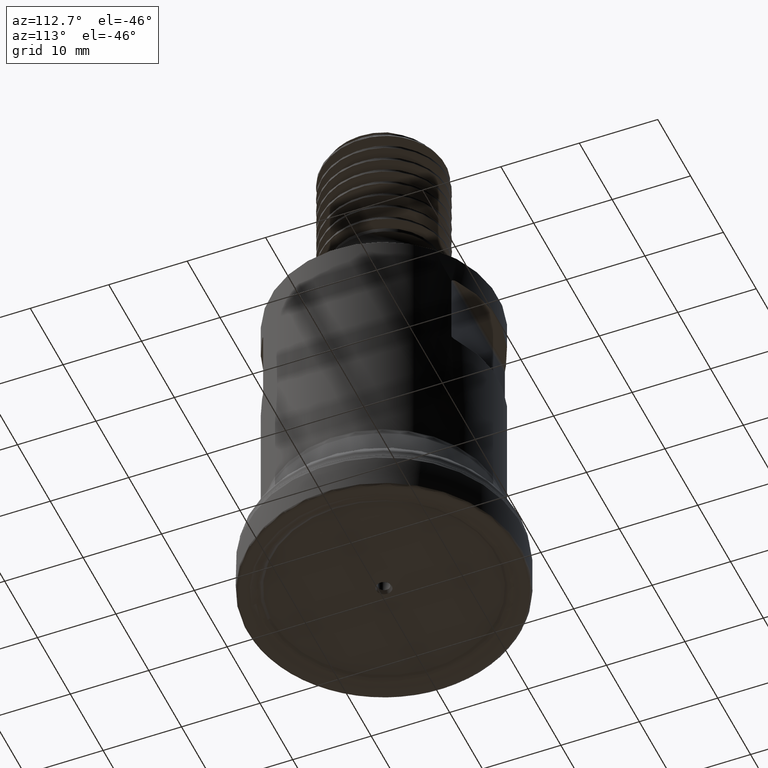
[diagram: clean part render]
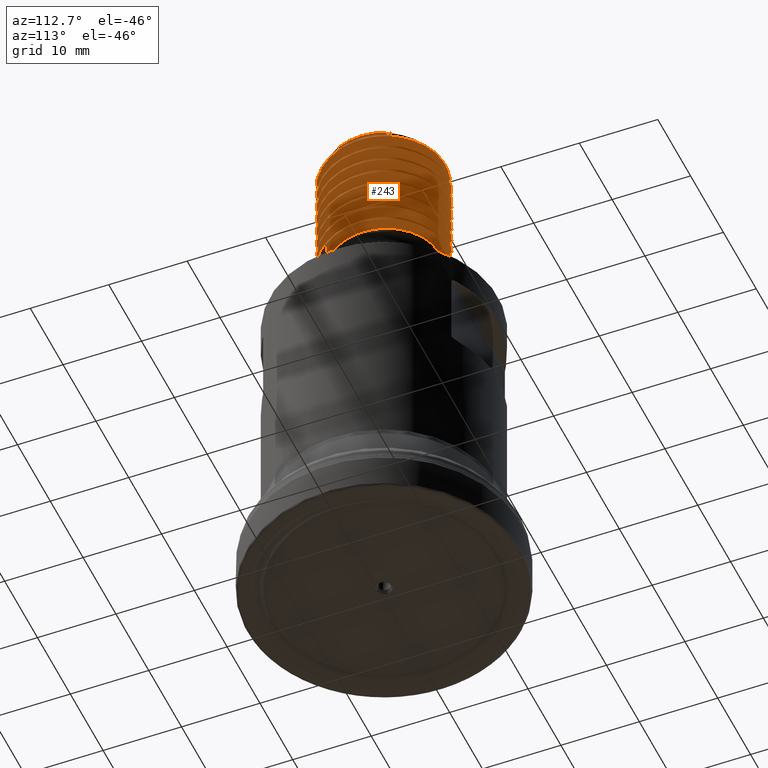
[diagram: same view with one face highlighted and labeled with its STEP entity id]
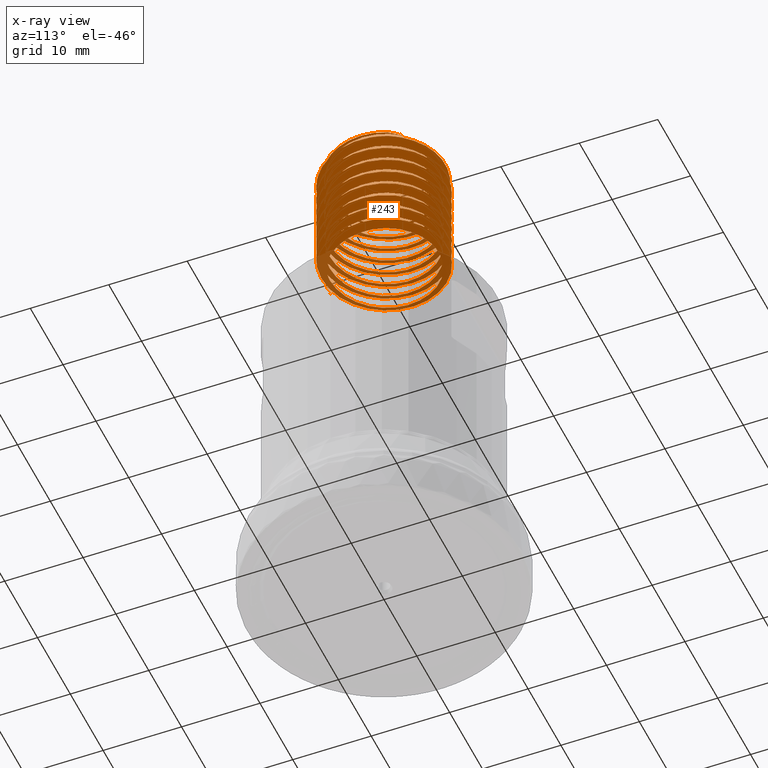
[diagram: x-ray of the same camera — body ghosted, the highlighted face saturated]
A machine part, auxiliary view. The second image highlights one B-rep face of the part: STEP entity #243.
The next image is the same camera in x-ray: the body ghosted, the highlighted face saturated — about 22% of this face is hidden behind the body in this view.
In plain terms, the highlighted face is a freeform B-spline surface patch.
Its self-contained STEP definition (entity closure, byte-faithful):
#152=B_SPLINE_SURFACE_WITH_KNOTS('',1,3,((#2382,#2383,#2384,#2385,#2386,
#2387,#2388,#2389,#2390,#2391,#2392,#2393,#2394,#2395,#2396,#2397,#2398,
#2399,#2400,#2401,#2402,#2403,#2404,#2405,#2406,#2407,#2408,#2409,#2410,
#2411,#2412,#2413,#2414,#2415,#2416,#2417,#2418,#2419,#2420,#2421,#2422,
#2423,#2424,#2425,#2426,#2427,#2428,#2429,#2430,#2431,#2432,#2433,#2434,
#2435,#2436,#2437,#2438,#2439,#2440,#2441,#2442,#2443,#2444,#2445,#2446,
#2447,#2448,#2449,#2450,#2451,#2452,#2453,#2454,#2455,#2456,#2457,#2458,
#2459,#2460,#2461,#2462,#2463,#2464,#2465,#2466,#2467,#2468,#2469,#2470,
#2471,#2472,#2473,#2474,#2475,#2476,#2477,#2478,#2479,#2480,#2481,#2482,
#2483,#2484,#2485,#2486,#2487,#2488,#2489,#2490,#2491,#2492,#2493,#2494,
#2495,#2496,#2497,#2498,#2499,#2500,#2501,#2502,#2503,#2504,#2505,#2506,
#2507,#2508,#2509,#2510,#2511,#2512,#2513,#2514,#2515,#2516,#2517,#2518,
#2519,#2520,#2521,#2522,#2523,#2524,#2525,#2526,#2527,#2528,#2529,#2530,
#2531,#2532,#2533,#2534,#2535,#2536,#2537,#2538,#2539,#2540,#2541,#2542,
#2543,#2544,#2545,#2546,#2547,#2548,#2549,#2550,#2551,#2552,#2553,#2554,
#2555,#2556,#2557,#2558,#2559,#2560,#2561,#2562,#2563,#2564,#2565,#2566,
#2567,#2568,#2569,#2570,#2571,#2572,#2573,#2574,#2575,#2576,#2577,#2578,
#2579,#2580,#2581,#2582,#2583,#2584,#2585,#2586,#2587,#2588,#2589,#2590,
#2591,#2592,#2593,#2594,#2595,#2596,#2597,#2598,#2599,#2600,#2601,#2602,
#2603,#2604,#2605,#2606,#2607,#2608,#2609,#2610,#2611,#2612,#2613,#2614,
#2615,#2616,#2617,#2618,#2619,#2620,#2621,#2622,#2623,#2624,#2625,#2626,
#2627,#2628,#2629,#2630,#2631,#2632,#2633,#2634,#2635,#2636,#2637,#2638,
#2639,#2640,#2641,#2642,#2643,#2644,#2645,#2646,#2647,#2648,#2649,#2650,
#2651,#2652,#2653,#2654,#2655,#2656,#2657,#2658),(#2659,#2660,#2661,#2662,
#2663,#2664,#2665,#2666,#2667,#2668,#2669,#2670,#2671,#2672,#2673,#2674,
#2675,#2676,#2677,#2678,#2679,#2680,#2681,#2682,#2683,#2684,#2685,#2686,
#2687,#2688,#2689,#2690,#2691,#2692,#2693,#2694,#2695,#2696,#2697,#2698,
#2699,#2700,#2701,#2702,#2703,#2704,#2705,#2706,#2707,#2708,#2709,#2710,
#2711,#2712,#2713,#2714,#2715,#2716,#2717,#2718,#2719,#2720,#2721,#2722,
#2723,#2724,#2725,#2726,#2727,#2728,#2729,#2730,#2731,#2732,#2733,#2734,
#2735,#2736,#2737,#2738,#2739,#2740,#2741,#2742,#2743,#2744,#2745,#2746,
#2747,#2748,#2749,#2750,#2751,#2752,#2753,#2754,#2755,#2756,#2757,#2758,
#2759,#2760,#2761,#2762,#2763,#2764,#2765,#2766,#2767,#2768,#2769,#2770,
#2771,#2772,#2773,#2774,#2775,#2776,#2777,#2778,#2779,#2780,#2781,#2782,
#2783,#2784,#2785,#2786,#2787,#2788,#2789,#2790,#2791,#2792,#2793,#2794,
#2795,#2796,#2797,#2798,#2799,#2800,#2801,#2802,#2803,#2804,#2805,#2806,
#2807,#2808,#2809,#2810,#2811,#2812,#2813,#2814,#2815,#2816,#2817,#2818,
#2819,#2820,#2821,#2822,#2823,#2824,#2825,#2826,#2827,#2828,#2829,#2830,
#2831,#2832,#2833,#2834,#2835,#2836,#2837,#2838,#2839,#2840,#2841,#2842,
#2843,#2844,#2845,#2846,#2847,#2848,#2849,#2850,#2851,#2852,#2853,#2854,
#2855,#2856,#2857,#2858,#2859,#2860,#2861,#2862,#2863,#2864,#2865,#2866,
#2867,#2868,#2869,#2870,#2871,#2872,#2873,#2874,#2875,#2876,#2877,#2878,
#2879,#2880,#2881,#2882,#2883,#2884,#2885,#2886,#2887,#2888,#2889,#2890,
#2891,#2892,#2893,#2894,#2895,#2896,#2897,#2898,#2899,#2900,#2901,#2902,
#2903,#2904,#2905,#2906,#2907,#2908,#2909,#2910,#2911,#2912,#2913,#2914,
#2915,#2916,#2917,#2918,#2919,#2920,#2921,#2922,#2923,#2924,#2925,#2926,
#2927,#2928,#2929,#2930,#2931,#2932,#2933,#2934,#2935)),.UNSPECIFIED.,.F.,
 .F.,.F.,(2,2),(4,1,1,1,1,1,1,1,1,1,1,1,1,1,1,1,1,1,1,1,1,1,1,1,1,1,1,1,
1,1,1,1,1,1,1,1,1,1,1,1,1,1,1,1,1,1,1,1,1,1,1,1,1,1,1,1,1,1,1,1,1,1,1,1,
1,1,1,1,1,1,1,1,1,1,1,1,1,1,1,1,1,1,1,1,1,1,1,1,1,1,1,1,1,1,1,1,1,1,1,1,
1,1,1,1,1,1,1,1,1,1,1,1,1,1,1,1,1,1,1,1,1,1,1,1,1,1,1,1,1,1,1,1,1,1,1,1,
1,1,1,1,1,1,1,1,1,1,1,1,1,1,1,1,1,1,1,1,1,1,1,1,1,1,1,1,1,1,1,1,1,1,1,1,
1,1,1,1,1,1,1,1,1,1,1,1,1,1,1,1,1,1,1,1,1,1,1,1,1,1,1,1,1,1,1,1,1,1,1,1,
1,1,1,1,1,1,1,1,1,1,1,1,1,1,1,1,1,1,1,1,1,1,1,1,1,1,1,1,1,1,1,1,1,1,1,1,
1,1,1,1,1,1,1,1,1,1,1,1,1,1,1,1,1,1,1,1,1,1,1,1,1,1,1,1,1,1,4),(0.,1.),
(0.,0.00366185293501716,0.00732370587003432,0.0109855588050515,0.0146474117400686,
0.0183092646750858,0.021971117610103,0.0256329705451201,0.0292948234801373,
0.0329566764151545,0.0366185293501716,0.0402803822851888,0.0439422352202059,
0.0476040881552231,0.0512659410902403,0.0549277940252574,0.0585896469602746,
0.0622514998952917,0.0659133528303089,0.0695752057653261,0.0732370587003432,
0.0768989116353604,0.0805607645703775,0.0842226175053947,0.0878844704404119,
0.091546323375429,0.0952081763104462,0.0988700292454634,0.102531882180481,
0.106193735115498,0.109855588050515,0.113517440985532,0.117179293920549,
0.120841146855566,0.124502999790583,0.128164852725601,0.131826705660618,
0.135488558595635,0.139150411530652,0.142812264465669,0.146474117400686,
0.150135970335704,0.153797823270721,0.157459676205738,0.161121529140755,
0.164783382075772,0.168445235010789,0.172107087945807,0.175768940880824,
0.179430793815841,0.183092646750858,0.186754499685875,0.190416352620892,
0.19407820555591,0.197740058490927,0.201401911425944,0.205063764360961,
0.208725617295978,0.212387470230995,0.216049323166013,0.21971117610103,
0.223373029036047,0.227034881971064,0.230696734906081,0.234358587841098,
0.238020440776115,0.241682293711133,0.24534414664615,0.249005999581167,
0.252667852516184,0.256329705451201,0.259991558386218,0.263653411321236,
0.267315264256253,0.27097711719127,0.274638970126287,0.278300823061304,
0.281962675996321,0.285624528931339,0.289286381866356,0.292948234801373,
0.29661008773639,0.300271940671407,0.303933793606424,0.307595646541442,
0.311257499476459,0.314919352411476,0.318581205346493,0.32224305828151,
0.325904911216527,0.329566764151545,0.333228617086562,0.336890470021579,
0.340552322956596,0.344214175891613,0.34787602882663,0.351537881761648,
0.355199734696665,0.358861587631682,0.362523440566699,0.366185293501716,
0.369847146436733,0.37350899937175,0.377170852306768,0.380832705241785,
0.384494558176802,0.388156411111819,0.391818264046836,0.395480116981853,
0.399141969916871,0.402803822851888,0.406465675786905,0.410127528721922,
0.413789381656939,0.417451234591956,0.421113087526974,0.424774940461991,
0.428436793397008,0.432098646332025,0.435760499267042,0.439422352202059,
0.443084205137077,0.446746058072094,0.450407911007111,0.454069763942128,
0.457731616877145,0.461393469812162,0.465055322747179,0.468717175682197,
0.472379028617214,0.476040881552231,0.479702734487248,0.483364587422265,
0.487026440357282,0.4906882932923,0.494350146227317,0.498011999162334,0.501673852097351,
0.505335705032368,0.508997557967385,0.512659410902403,0.51632126383742,
0.519983116772437,0.523644969707454,0.527306822642471,0.530968675577488,
0.534630528512506,0.538292381447523,0.54195423438254,0.545616087317557,
0.549277940252574,0.552939793187591,0.556601646122609,0.560263499057626,
0.563925351992643,0.56758720492766,0.571249057862677,0.574910910797694,
0.578572763732711,0.582234616667729,0.585896469602746,0.589558322537763,
0.59322017547278,0.596882028407797,0.600543881342814,0.604205734277832,
0.607867587212849,0.611529440147866,0.615191293082883,0.6188531460179,0.622514998952917,
0.626176851887935,0.629838704822952,0.633500557757969,0.637162410692986,
0.640824263628003,0.64448611656302,0.648147969498038,0.651809822433055,
0.655471675368072,0.659133528303089,0.662795381238106,0.666457234173123,
0.670119087108141,0.673780940043158,0.677442792978175,0.681104645913192,
0.684766498848209,0.688428351783226,0.692090204718243,0.695752057653261,
0.699413910588278,0.703075763523295,0.706737616458312,0.710399469393329,
0.714061322328347,0.717723175263364,0.721385028198381,0.725046881133398,
0.728708734068415,0.732370587003432,0.736032439938449,0.739694292873467,
0.743356145808484,0.747017998743501,0.750679851678518,0.754341704613535,
0.758003557548552,0.76166541048357,0.765327263418587,0.768989116353604,
0.772650969288621,0.776312822223638,0.779974675158655,0.783636528093673,
0.78729838102869,0.790960233963707,0.794622086898724,0.798283939833741,
0.801945792768758,0.805607645703776,0.809269498638793,0.81293135157381,
0.816593204508827,0.820255057443844,0.823916910378861,0.827578763313878,
0.831240616248896,0.834902469183913,0.83856432211893,0.842226175053947,
0.845888027988964,0.849549880923981,0.853211733858999,0.856873586794016,
0.860535439729033,0.86419729266405,0.867859145599067,0.871520998534084,
0.875182851469102,0.878844704404119,0.882506557339136,0.886168410274153,
0.88983026320917,0.893492116144187,0.897153969079205,0.900815822014222,
0.904477674949239,0.908139527884256,0.911801380819273,0.91546323375429,
0.919125086689307,0.922786939624325,0.926448792559342,0.930110645494359,
0.933772498429376,0.937434351364393,0.94109620429941,0.944758057234428,
0.948419910169445,0.952081763104462,0.955743616039479,0.959405468974496,
0.963067321909514,0.966729174844531,0.970391027779548,0.974052880714565,
0.977714733649582,0.981376586584599,0.985038439519616,0.988700292454634,
0.992362145389651,0.996023998324668,0.999685851259685,1.),.UNSPECIFIED.);
#171=FACE_OUTER_BOUND('',#477,.T.);
#243=ADVANCED_FACE('',(#171),#152,.F.);
#477=EDGE_LOOP('',(#645,#646,#647,#648,#649,#650));
#645=ORIENTED_EDGE('',*,*,#824,.T.);
#646=ORIENTED_EDGE('',*,*,#810,.F.);
#647=ORIENTED_EDGE('',*,*,#812,.F.);
#648=ORIENTED_EDGE('',*,*,#816,.F.);
#649=ORIENTED_EDGE('',*,*,#841,.F.);
#650=ORIENTED_EDGE('',*,*,#806,.F.);
#728=VERTEX_POINT('',#1717);
#730=VERTEX_POINT('',#1721);
#731=VERTEX_POINT('',#1728);
#734=VERTEX_POINT('',#1862);
#736=VERTEX_POINT('',#1996);
#738=VERTEX_POINT('',#2018);
#806=EDGE_CURVE('',#730,#728,#947,.T.);
#810=EDGE_CURVE('',#734,#731,#949,.T.);
#812=EDGE_CURVE('',#736,#734,#950,.T.);
#816=EDGE_CURVE('',#738,#736,#953,.T.);
#824=EDGE_CURVE('',#730,#731,#954,.T.);
#841=EDGE_CURVE('',#728,#738,#957,.T.);
#947=B_SPLINE_CURVE_WITH_KNOTS('',3,(#1722,#1723,#1724,#1725),
 .UNSPECIFIED.,.F.,.F.,(4,4),(0.,1.),.UNSPECIFIED.);
#949=B_SPLINE_CURVE_WITH_KNOTS('',3,(#1863,#1864,#1865,#1866,#1867,#1868,
#1869,#1870,#1871,#1872,#1873,#1874,#1875,#1876,#1877,#1878,#1879,#1880,
#1881,#1882,#1883,#1884,#1885,#1886,#1887,#1888,#1889,#1890,#1891,#1892,
#1893,#1894,#1895,#1896,#1897,#1898,#1899,#1900,#1901,#1902,#1903,#1904,
#1905,#1906,#1907,#1908,#1909,#1910,#1911,#1912,#1913,#1914,#1915,#1916,
#1917,#1918,#1919,#1920,#1921,#1922,#1923,#1924,#1925,#1926,#1927,#1928,
#1929,#1930,#1931,#1932,#1933,#1934,#1935,#1936,#1937,#1938,#1939,#1940,
#1941,#1942,#1943,#1944,#1945,#1946,#1947,#1948,#1949,#1950,#1951,#1952,
#1953,#1954,#1955,#1956,#1957,#1958,#1959,#1960,#1961,#1962,#1963,#1964,
#1965,#1966,#1967,#1968,#1969,#1970,#1971,#1972,#1973,#1974,#1975,#1976,
#1977,#1978,#1979,#1980,#1981,#1982,#1983,#1984,#1985,#1986,#1987,#1988,
#1989,#1990,#1991,#1992),.UNSPECIFIED.,.F.,.F.,(4,2,2,2,2,2,2,2,2,2,2,2,
2,2,2,2,2,2,2,2,2,2,2,2,2,2,2,2,2,2,2,2,2,2,2,2,2,2,2,2,2,2,2,2,2,2,2,2,
2,2,2,2,2,2,2,2,2,2,2,2,2,2,2,2,4),(0.,0.015625,0.03125,0.046875,0.0625,
0.078125,0.09375,0.109375,0.125,0.140625,0.15625,0.171875,0.1875,0.203125,
0.21875,0.234375,0.25,0.265625,0.28125,0.296875,0.3125,0.328125,0.34375,
0.359375,0.375,0.390625,0.40625,0.421875,0.4375,0.453125,0.46875,0.484375,
0.5,0.515625,0.53125,0.546875,0.5625,0.578125,0.59375,0.609375,0.625,0.640625,
0.65625,0.671875,0.6875,0.703125,0.71875,0.734375,0.75,0.765625,0.78125,
0.796875,0.8125,0.828125,0.84375,0.859375,0.875,0.890625,0.90625,0.921875,
0.9375,0.953125,0.96875,0.984375,1.),.UNSPECIFIED.);
#950=B_SPLINE_CURVE_WITH_KNOTS('',3,(#1997,#1998,#1999,#2000),
 .UNSPECIFIED.,.F.,.F.,(4,4),(0.,1.),.UNSPECIFIED.);
#953=B_SPLINE_CURVE_WITH_KNOTS('',3,(#2019,#2020,#2021,#2022,#2023,#2024,
#2025,#2026,#2027,#2028,#2029,#2030,#2031,#2032),.UNSPECIFIED.,.F.,.F.,
(4,2,2,2,2,2,4),(0.,0.499999999999999,0.749999999999999,0.874999999999999,
0.937499999999999,0.96875,1.),.UNSPECIFIED.);
#954=B_SPLINE_CURVE_WITH_KNOTS('',3,(#2055,#2056,#2057,#2058,#2059,#2060,
#2061,#2062,#2063,#2064,#2065,#2066,#2067,#2068,#2069,#2070,#2071,#2072),
 .UNSPECIFIED.,.F.,.F.,(4,2,2,2,2,2,2,2,4),(0.,0.125,0.25,0.375,0.5,0.625,
0.75,0.875,1.),.UNSPECIFIED.);
#957=B_SPLINE_CURVE_WITH_KNOTS('',3,(#2121,#2122,#2123,#2124,#2125,#2126,
#2127,#2128,#2129,#2130,#2131,#2132,#2133,#2134,#2135,#2136,#2137,#2138,
#2139,#2140,#2141,#2142,#2143,#2144,#2145,#2146,#2147,#2148,#2149,#2150,
#2151,#2152,#2153,#2154,#2155,#2156,#2157,#2158,#2159,#2160,#2161,#2162,
#2163,#2164,#2165,#2166,#2167,#2168,#2169,#2170,#2171,#2172,#2173,#2174,
#2175,#2176,#2177,#2178,#2179,#2180,#2181,#2182,#2183,#2184,#2185,#2186,
#2187,#2188,#2189,#2190,#2191,#2192,#2193,#2194,#2195,#2196,#2197,#2198,
#2199,#2200,#2201,#2202,#2203,#2204,#2205,#2206,#2207,#2208,#2209,#2210,
#2211,#2212,#2213,#2214,#2215,#2216,#2217,#2218,#2219,#2220,#2221,#2222,
#2223,#2224,#2225,#2226,#2227,#2228,#2229,#2230,#2231,#2232,#2233,#2234,
#2235,#2236,#2237,#2238,#2239,#2240,#2241,#2242,#2243,#2244,#2245,#2246,
#2247,#2248,#2249,#2250),.UNSPECIFIED.,.F.,.F.,(4,2,2,2,2,2,2,2,2,2,2,2,
2,2,2,2,2,2,2,2,2,2,2,2,2,2,2,2,2,2,2,2,2,2,2,2,2,2,2,2,2,2,2,2,2,2,2,2,
2,2,2,2,2,2,2,2,2,2,2,2,2,2,2,2,4),(0.,0.015625,0.03125,0.046875,0.0625,
0.078125,0.09375,0.109375,0.125,0.140625,0.15625,0.171875,0.1875,0.203125,
0.21875,0.234375,0.25,0.265625,0.28125,0.296875,0.3125,0.328125,0.34375,
0.359375,0.375,0.390625,0.40625,0.421875,0.4375,0.453125,0.46875,0.484375,
0.5,0.515625,0.53125,0.546875,0.5625,0.578125,0.59375,0.609375,0.625,0.640625,
0.65625,0.671875,0.6875,0.703125,0.71875,0.734375,0.75,0.765625,0.78125,
0.796875,0.8125,0.828125,0.84375,0.859375,0.875,0.890625,0.90625,0.921875,
0.9375,0.953125,0.96875,0.984375,1.),.UNSPECIFIED.);
#1717=CARTESIAN_POINT('',(5.35401283944786,4.50938427227366,70.45));
#1721=CARTESIAN_POINT('',(6.40140349429203,3.14890883366229,70.45));
#1722=CARTESIAN_POINT('',(6.401403494292,3.14890883366227,70.45));
#1723=CARTESIAN_POINT('',(6.10913267027931,3.64191383485213,70.45));
#1724=CARTESIAN_POINT('',(5.75765303477686,4.09938697941004,70.45));
#1725=CARTESIAN_POINT('',(5.35401283944786,4.50938427227366,70.45));
#1728=CARTESIAN_POINT('',(7.17785428981805,3.53247898707726,68.95));
#1862=CARTESIAN_POINT('',(6.29566578838417,-4.9360502713164,54.5928856678375));
#1863=CARTESIAN_POINT('',(6.29566578835474,-4.9360502713546,54.5928856678368));
#1864=CARTESIAN_POINT('',(7.46632144327613,-3.44294214816487,54.6688646402676));
#1865=CARTESIAN_POINT('',(8.0691561131384,-1.56702526442771,54.7415222169882));
#1866=CARTESIAN_POINT('',(7.91803293557399,2.20717081095224,54.8926747101589));
#1867=CARTESIAN_POINT('',(7.1570478218763,4.0394834359773,54.966996689977));
#1868=CARTESIAN_POINT('',(4.60599994390346,6.80628565892739,55.1159034854777));
#1869=CARTESIAN_POINT('',(2.83001526972825,7.71440343130595,55.1917775641073));
#1870=CARTESIAN_POINT('',(-0.895316911023375,8.16819529373993,55.3401282403617));
#1871=CARTESIAN_POINT('',(-2.84425079389076,7.70828488423885,55.415808622744));
#1872=CARTESIAN_POINT('',(-5.97022620939883,5.64480446461523,55.5648770740425));
#1873=CARTESIAN_POINT('',(-7.16047180377567,4.02834772479572,55.639601814181));
#1874=CARTESIAN_POINT('',(-8.20429647488584,0.435271405801599,55.7894635231574));
#1875=CARTESIAN_POINT('',(-8.06447968912855,-1.56931686272171,55.863885931323));
#1876=CARTESIAN_POINT('',(-6.53268650432337,-4.98222792616121,56.0134031536612));
#1877=CARTESIAN_POINT('',(-5.12869268615938,-6.41871128914183,56.0889571122142));
#1878=CARTESIAN_POINT('',(-1.74871441888735,-8.02778557035483,56.2369717224872));
#1879=CARTESIAN_POINT('',(0.24775350625364,-8.21295637440815,56.313255396979));
#1880=CARTESIAN_POINT('',(3.87058118565702,-7.24794008619214,56.4616078174419));
#1881=CARTESIAN_POINT('',(5.50657654848983,-6.09987246680979,56.536904490672));
#1882=CARTESIAN_POINT('',(7.64642726775096,-3.01047827341731,56.6866914820682));
#1883=CARTESIAN_POINT('',(8.14716971279593,-1.08518172876071,56.7604494077319));
#1884=CARTESIAN_POINT('',(7.77446992989097,2.66676039845296,56.9115684579541));
#1885=CARTESIAN_POINT('',(6.91438393298589,4.446926987315,56.9846488234967));
#1886=CARTESIAN_POINT('',(4.18804128333751,7.07419076731074,57.135788358338));
#1887=CARTESIAN_POINT('',(2.38374802764265,7.86759254709822,57.2099236584623));
#1888=CARTESIAN_POINT('',(-1.39384855944396,8.10175618861622,57.359465574727));
#1889=CARTESIAN_POINT('',(-3.28828678615368,7.53253876540551,57.4346396474194));
#1890=CARTESIAN_POINT('',(-6.30494875336158,5.27253178822216,57.5838426327781));
#1891=CARTESIAN_POINT('',(-7.38625944914696,3.60171672029616,57.658700376087));
#1892=CARTESIAN_POINT('',(-8.21737755043163,-0.0624353828804659,57.8085357776574));
#1893=CARTESIAN_POINT('',(-7.95809579107318,-2.04486943798401,57.8826803991221));
#1894=CARTESIAN_POINT('',(-6.22166415091107,-5.36690551729445,58.0329050953829));
#1895=CARTESIAN_POINT('',(-4.73575760791975,-6.71381011277636,58.1073568073389));
#1896=CARTESIAN_POINT('',(-1.26600405824053,-8.11787411062198,58.2565261794618));
#1897=CARTESIAN_POINT('',(0.741774412877989,-8.18219849970145,58.3324337277766));
#1898=CARTESIAN_POINT('',(4.29267149577339,-7.00511049145497,58.4802203227995));
#1899=CARTESIAN_POINT('',(5.86473718664724,-5.75372032232737,58.5566185834786));
#1900=CARTESIAN_POINT('',(7.80813345594909,-2.55606959022935,58.7049186955522));
#1901=CARTESIAN_POINT('',(8.19536685783089,-0.586707490760355,58.780261343694));
#1902=CARTESIAN_POINT('',(7.60402847717464,3.11239691113855,58.9298607408587));
#1903=CARTESIAN_POINT('',(6.62633332688682,4.85941877420942,59.0039684372788));
#1904=CARTESIAN_POINT('',(3.77395678065121,7.29928040288402,59.1544389481011));
#1905=CARTESIAN_POINT('',(1.90511697751433,7.99456970968973,59.2285457255834));
#1906=CARTESIAN_POINT('',(-1.85923497691531,8.00536450398832,59.3782646075159));
#1907=CARTESIAN_POINT('',(-3.72316635822901,7.32853933381187,59.4532843677339));
#1908=CARTESIAN_POINT('',(-6.60839973932259,4.88861016891267,59.6025047600078));
#1909=CARTESIAN_POINT('',(-7.58344041255827,3.17622074011883,59.6772411959989));
#1910=CARTESIAN_POINT('',(-8.20222459526897,-0.566090425238967,59.8276507391343));
#1911=CARTESIAN_POINT('',(-7.82966218046105,-2.50217018364485,59.9013921871203));
#1912=CARTESIAN_POINT('',(-5.88482557458435,-5.73875364907583,60.0522572250532));
#1913=CARTESIAN_POINT('',(-4.33645712486316,-6.9809667057962,60.125633512439));
#1914=CARTESIAN_POINT('',(-0.770975621296705,-8.18195289246877,60.2763931148382));
#1915=CARTESIAN_POINT('',(1.22371873660482,-8.12540039820311,60.3507513245032));
#1916=CARTESIAN_POINT('',(4.70843028088978,-6.73426339456943,60.4997307089158));
#1917=CARTESIAN_POINT('',(6.19730506197771,-5.39444855102288,60.5757137212236));
#1918=CARTESIAN_POINT('',(7.94770044990546,-2.08344012619052,60.7236649917648));
#1919=CARTESIAN_POINT('',(8.21528515278476,-0.093741508533867,60.7998260170768));
#1920=CARTESIAN_POINT('',(7.4049680409941,3.55895292520767,60.9483897568448));
#1921=CARTESIAN_POINT('',(6.31949051322313,5.25002581555978,61.0235190671662));
#1922=CARTESIAN_POINT('',(3.33658555755335,7.50772457059311,61.1731669390907));
#1923=CARTESIAN_POINT('',(1.41531480406075,8.09325218212781,61.2474566169698));
#1924=CARTESIAN_POINT('',(-2.32237742889188,7.88101579467286,61.3974408412478));
#1925=CARTESIAN_POINT('',(-4.16207750959593,7.08465071324046,61.4723636762486));
#1926=CARTESIAN_POINT('',(-6.87650228079524,4.49765286640931,61.6210024761444));
#1927=CARTESIAN_POINT('',(-7.75969297496579,2.70550449212952,61.6969190762749));
#1928=CARTESIAN_POINT('',(-8.15264559768987,-1.03293725905008,61.8454114546706));
#1929=CARTESIAN_POINT('',(-7.66730926116284,-2.96119106305512,61.9206990507531));
#1930=CARTESIAN_POINT('',(-5.53749685691601,-6.073912444041,62.0705575185564));
#1931=CARTESIAN_POINT('',(-3.92899933387075,-7.22146457309485,62.1441596519486));
#1932=CARTESIAN_POINT('',(-0.274386051201261,-8.21652594719492,62.2957290263991));
#1933=CARTESIAN_POINT('',(1.68919947311531,-8.04518898794897,62.3684486567148));
#1934=CARTESIAN_POINT('',(5.11356803900401,-6.43660489872308,62.5198989840876));
#1935=CARTESIAN_POINT('',(6.50255924003411,-5.02658812401553,62.5939119999367));
#1936=CARTESIAN_POINT('',(8.06235193510666,-1.5963540062059,62.7431218773933));
#1937=CARTESIAN_POINT('',(8.20829791884002,0.389306128805566,62.8187749686819));
#1938=CARTESIAN_POINT('',(7.1774278130607,4.00153020414216,62.9672680171623));
#1939=CARTESIAN_POINT('',(5.99748144015002,5.61622730949421,63.0428606631094));
#1940=CARTESIAN_POINT('',(2.87922933947004,7.69557218324845,63.1919852147188));
#1941=CARTESIAN_POINT('',(0.928643418164138,8.16331090169403,63.266665729489));
#1942=CARTESIAN_POINT('',(-2.78871754854672,7.72820017275971,63.4165762513259));
#1943=CARTESIAN_POINT('',(-4.58081407113906,6.82015654488027,63.4909067323073));
#1944=CARTESIAN_POINT('',(-7.12978827089256,4.08221901216249,63.6405418874119));
#1945=CARTESIAN_POINT('',(-7.90757857762592,2.22959289711079,63.7160155325743));
#1946=CARTESIAN_POINT('',(-8.0761746278506,-1.50873683213372,63.8640241601226));
#1947=CARTESIAN_POINT('',(-7.47001655663712,-3.42171636673297,63.9404188023359));
#1948=CARTESIAN_POINT('',(-5.17421581235339,-6.38253718970701,64.0885600723418));
#1949=CARTESIAN_POINT('',(-3.47806928862314,-7.44491621243316,64.1641310405528));
#1950=CARTESIAN_POINT('',(0.196443599538288,-8.21493477142786,64.3136137876593));
#1951=CARTESIAN_POINT('',(2.16877517938677,-7.92722504029471,64.3876741831556));
#1952=CARTESIAN_POINT('',(5.47646845286349,-6.12803197633558,64.5385134220724));
#1953=CARTESIAN_POINT('',(6.78556483074334,-4.63981969953918,64.6117880390018));
#1954=CARTESIAN_POINT('',(8.14454852674851,-1.11272018580244,64.7627872167035));
#1955=CARTESIAN_POINT('',(8.17669524520955,0.85774333135331,64.836793918888));
#1956=CARTESIAN_POINT('',(6.92225075734459,4.43582159334165,64.9866786548514));
#1957=CARTESIAN_POINT('',(5.6647736346465,5.95588448872915,65.0615925656717));
#1958=CARTESIAN_POINT('',(2.40533291296741,7.85980877328871,65.2109950284226));
#1959=CARTESIAN_POINT('',(0.44970159194234,8.20577623095286,65.2857040643713));
#1960=CARTESIAN_POINT('',(-3.25347667457421,7.54664724246915,65.4356718489422));
#1961=CARTESIAN_POINT('',(-4.97647749611395,6.5385690663218,65.5096886817735));
#1962=CARTESIAN_POINT('',(-7.36416885529884,3.64516539748673,65.6600573595569));
#1963=CARTESIAN_POINT('',(-8.0267030644142,1.75436626251933,65.7343118160684));
#1964=CARTESIAN_POINT('',(-7.97156226466294,-1.9899643534354,65.8837121445204));
#1965=CARTESIAN_POINT('',(-7.25049617116777,-3.86390488161926,65.9594833921944));
#1966=CARTESIAN_POINT('',(-4.78535256727601,-6.67831239679491,66.1072828186254));
#1967=CARTESIAN_POINT('',(-3.02106513703516,-7.6401702974451,66.1837694814217));
#1968=CARTESIAN_POINT('',(0.67980782648995,-8.18760636909317,66.3319063728479));
#1969=CARTESIAN_POINT('',(2.64593520142317,-7.77840647643293,66.4074649344242));
#1970=CARTESIAN_POINT('',(5.82260221776035,-5.7967131908071,66.5568404535403));
#1971=CARTESIAN_POINT('',(7.05342355830098,-4.21490809471377,66.6311541377305));
#1972=CARTESIAN_POINT('',(8.19174562914457,-0.641512031898424,66.7814584557741));
#1973=CARTESIAN_POINT('',(8.10561281660869,1.35397483635315,66.8556265746371));
#1974=CARTESIAN_POINT('',(6.65419608514656,4.8224352199557,67.0053478701737));
#1975=CARTESIAN_POINT('',(5.30295229191443,6.27991101640938,67.0804264860988));
#1976=CARTESIAN_POINT('',(1.93865826641994,7.98750208202676,67.2294639125348));
#1977=CARTESIAN_POINT('',(-0.0221330598567817,8.22125269933364,67.3043673468054));
#1978=CARTESIAN_POINT('',(-3.70696746741072,7.33811133836202,67.4545937417227));
#1979=CARTESIAN_POINT('',(-5.34650192298694,6.24426067682422,67.5283361317871));
#1980=CARTESIAN_POINT('',(-7.57642993775698,3.18960555725865,67.6794184883868));
#1981=CARTESIAN_POINT('',(-8.11771815301826,1.28464638190308,67.7525747677329));
#1982=CARTESIAN_POINT('',(-7.8381633712048,-2.47201523148255,67.9035806747262));
#1983=CARTESIAN_POINT('',(-7.01204873545638,-4.28454121439202,67.9776567506259));
#1984=CARTESIAN_POINT('',(-4.37338644677449,-6.95698295767702,68.1269318352341));
#1985=CARTESIAN_POINT('',(-2.56236582387552,-7.80673639328023,68.202746723608));
#1986=CARTESIAN_POINT('',(1.17088909252231,-8.13264228049803,68.3507369311802));
#1987=CARTESIAN_POINT('',(3.10669694916195,-7.60592123421069,68.4269550252879));
#1988=CARTESIAN_POINT('',(6.15796256514405,-5.43885105525372,68.5754110616557));
#1989=CARTESIAN_POINT('',(7.29370803300559,-3.78155944055996,68.6506890985267));
#1990=CARTESIAN_POINT('',(8.21426148775621,-0.155810410384591,68.8002004819911));
#1991=CARTESIAN_POINT('',(8.015632236021,1.83014811771705,68.8739796604739));
#1992=CARTESIAN_POINT('',(7.17785428981805,3.53247898707726,68.95));
#1996=CARTESIAN_POINT('',(6.09836291351412,-4.78251709616137,54.4485481005393));
#1997=CARTESIAN_POINT('',(6.09836291351412,-4.78251709616137,54.4485481005393));
#1998=CARTESIAN_POINT('',(6.16412435888366,-4.83370275385635,54.4966606311107));
#1999=CARTESIAN_POINT('',(6.22989197665518,-4.88488048985289,54.5447731538274));
#2000=CARTESIAN_POINT('',(6.29566578835485,-4.93605027135456,54.5928856678368));
#2018=CARTESIAN_POINT('',(-0.934828873592552,-6.93729738277787,53.6847431295249));
#2019=CARTESIAN_POINT('',(-0.934828873592712,-6.93729738277999,53.6847431295262));
#2020=CARTESIAN_POINT('',(0.323684355985588,-7.1539782005199,53.7690927731454));
#2021=CARTESIAN_POINT('',(1.62344548451482,-7.02905213276213,53.8584664557292));
#2022=CARTESIAN_POINT('',(3.41446826731037,-6.40043409574812,54.0141999475374));
#2023=CARTESIAN_POINT('',(3.99207771358862,-6.11516908512489,54.0709514137349));
#2024=CARTESIAN_POINT('',(4.79679884765136,-5.60844912830545,54.1679156289807));
#2025=CARTESIAN_POINT('',(5.05584292264455,-5.42563791684958,54.2022558519024));
#2026=CARTESIAN_POINT('',(5.43839961944024,-5.14457827481945,54.2655946521459));
#2027=CARTESIAN_POINT('',(5.56473114084712,-5.04941887529022,54.2884787775247));
#2028=CARTESIAN_POINT('',(5.75774692550115,-4.91388305077715,54.3308559646146));
#2029=CARTESIAN_POINT('',(5.82264043169302,-4.86957781626223,54.3462040976065));
#2030=CARTESIAN_POINT('',(5.95752947567146,-4.79317474061719,54.3845352251554));
#2031=CARTESIAN_POINT('',(6.04290573883137,-4.73935180464808,54.4079744027264));
#2032=CARTESIAN_POINT('',(6.09836291351147,-4.7825170961593,54.4485481005383));
#2055=CARTESIAN_POINT('',(6.40140349429203,3.14890883366229,70.45));
#2056=CARTESIAN_POINT('',(7.31943963429091,1.37116121589234,70.382321445297));
#2057=CARTESIAN_POINT('',(7.43581613374729,-0.765158921097292,70.3178677982029));
#2058=CARTESIAN_POINT('',(6.08167036213428,-4.47026774753146,70.1872490775273));
#2059=CARTESIAN_POINT('',(4.61076543494885,-6.02679281854003,70.1227994286734));
#2060=CARTESIAN_POINT('',(0.956044088374196,-7.60019460735574,69.9938870469576));
#2061=CARTESIAN_POINT('',(-1.18220028131173,-7.60124542305958,69.929787255612));
#2062=CARTESIAN_POINT('',(-4.83060757801664,-6.07674971123949,69.8039950085789));
#2063=CARTESIAN_POINT('',(-6.33110439979364,-4.5517571672707,69.7403601432238));
#2064=CARTESIAN_POINT('',(-7.81566857079861,-0.894173030714687,69.6166339255086));
#2065=CARTESIAN_POINT('',(-7.81091949116,1.22805997079024,69.554388204854));
#2066=CARTESIAN_POINT('',(-6.2821448852398,4.91420430559452,69.4308896843509));
#2067=CARTESIAN_POINT('',(-4.78992049281202,6.41471019412049,69.3698674074515));
#2068=CARTESIAN_POINT('',(-1.16073523584159,7.98967502891545,69.2486896105197));
#2069=CARTESIAN_POINT('',(0.966707616145079,8.0476661052498,69.1884478719864));
#2070=CARTESIAN_POINT('',(4.67273697099545,6.70495470178155,69.0687537822762));
#2071=CARTESIAN_POINT('',(6.26427276148871,5.31031164356187,69.0100585566421));
#2072=CARTESIAN_POINT('',(7.17785428984322,3.5324789870283,68.9499999999983));
#2121=CARTESIAN_POINT('',(5.35401283944786,4.50938427227366,70.45));
#2122=CARTESIAN_POINT('',(6.59182985406166,3.03971839574197,70.3637399565031));
#2123=CARTESIAN_POINT('',(7.18310776025138,1.04060566650342,70.2742170686101));
#2124=CARTESIAN_POINT('',(6.71007346318391,-2.76673297721647,70.1017771202478));
#2125=CARTESIAN_POINT('',(5.64741838099544,-4.55773102854534,70.0127684963518));
#2126=CARTESIAN_POINT('',(2.54132800149736,-6.79763918484753,69.8398856306728));
#2127=CARTESIAN_POINT('',(0.50733566448231,-7.24267297883892,69.7518740259479));
#2128=CARTESIAN_POINT('',(-3.27101434844653,-6.48183357446915,69.5766291890875));
#2129=CARTESIAN_POINT('',(-4.97144275114471,-5.28568611067704,69.489864770749));
#2130=CARTESIAN_POINT('',(-6.96787450795535,-2.02544946367457,69.3148538591715));
#2131=CARTESIAN_POINT('',(-7.26320076300864,0.0255693779078201,69.2293671630908));
#2132=CARTESIAN_POINT('',(-6.21615749688584,3.75687703961237,69.0511733908775));
#2133=CARTESIAN_POINT('',(-4.89665834508435,5.35511387048648,68.9661228771191));
#2134=CARTESIAN_POINT('',(-1.49502756448623,7.10066194771925,68.7901207254955));
#2135=CARTESIAN_POINT('',(0.580296364754777,7.23681638324706,68.704553903868));
#2136=CARTESIAN_POINT('',(4.20017774417421,5.92171952671896,68.527748524665));
#2137=CARTESIAN_POINT('',(5.70687112222425,4.48334215800183,68.4412128938815));
#2138=CARTESIAN_POINT('',(7.19445480774719,0.953181478353687,68.266675034365));
#2139=CARTESIAN_POINT('',(7.16944205701404,-1.12937584197261,68.1787711843122));
#2140=CARTESIAN_POINT('',(5.59318189643599,-4.62522491071439,68.0056230096417));
#2141=CARTESIAN_POINT('',(4.04888381629346,-6.02520234677506,67.9165708843148));
#2142=CARTESIAN_POINT('',(0.403230491227549,-7.24802929411646,67.743758980196));
#2143=CARTESIAN_POINT('',(-1.66954994431885,-7.06191307996421,67.6544212464238));
#2144=CARTESIAN_POINT('',(-5.02853502023424,-5.23181124619594,67.4825773239058));
#2145=CARTESIAN_POINT('',(-6.30893056296727,-3.59660762278265,67.3937077783631));
#2146=CARTESIAN_POINT('',(-7.26052910259677,0.151355181433089,67.2194326734303));
#2147=CARTESIAN_POINT('',(-6.91545744091675,2.19753302384504,67.1313756649198));
#2148=CARTESIAN_POINT('',(-4.83922372147424,5.40690454710847,66.9580635423184));
#2149=CARTESIAN_POINT('',(-3.11233588824858,6.56058017586516,66.871014212604));
#2150=CARTESIAN_POINT('',(0.690998011584477,7.22844164901551,66.6946211510305));
#2151=CARTESIAN_POINT('',(2.71013655482188,6.73169031169701,66.6085256686138));
#2152=CARTESIAN_POINT('',(5.7573933078161,4.41734274168211,66.4327520095467));
#2153=CARTESIAN_POINT('',(6.77641593002273,2.60178592739117,66.3471605019251));
#2154=CARTESIAN_POINT('',(7.15531493554144,-1.22088944702363,66.1702481544423));
#2155=CARTESIAN_POINT('',(6.51259507649208,-3.20435629795625,66.0846683909485));
#2156=CARTESIAN_POINT('',(3.96835112553032,-6.07733356490346,65.9081235447665));
#2157=CARTESIAN_POINT('',(2.07883676271745,-6.95291201598073,65.8220935812967));
#2158=CARTESIAN_POINT('',(-1.74870032339423,-7.04319494029202,65.6469068228754));
#2159=CARTESIAN_POINT('',(-3.67745404805557,-6.26046957530081,65.5597184674029));
#2160=CARTESIAN_POINT('',(-6.3642930484092,-3.494699067559,65.3850178433534));
#2161=CARTESIAN_POINT('',(-7.08947843333174,-1.54688544324759,65.2966065488588));
#2162=CARTESIAN_POINT('',(-6.89178994831313,2.27085674130664,65.1245855478021));
#2163=CARTESIAN_POINT('',(-5.97462191661079,4.12972994134755,65.035712404908));
#2164=CARTESIAN_POINT('',(-3.00232141457673,6.61338359378036,64.8618368171321));
#2165=CARTESIAN_POINT('',(-1.00933444004367,7.1858717496009,64.7728628155461));
#2166=CARTESIAN_POINT('',(2.78370628763769,6.7012303435815,64.6009455205623));
#2167=CARTESIAN_POINT('',(4.57220412615423,5.63917599451545,64.512134995631));
#2168=CARTESIAN_POINT('',(6.81271632572394,2.50843631243757,64.3382319579841));
#2169=CARTESIAN_POINT('',(7.24222513211489,0.469745786580303,64.2502607822695));
#2170=CARTESIAN_POINT('',(6.47205018406627,-3.28375583488992,64.0759062400375));
#2171=CARTESIAN_POINT('',(5.27308907618258,-4.98685191999907,63.9890501830469));
#2172=CARTESIAN_POINT('',(1.99686759690002,-6.97758412903811,63.8134596960411));
#2173=CARTESIAN_POINT('',(-0.0682978357518206,-7.25908869280531,63.7274503670304));
#2174=CARTESIAN_POINT('',(-3.76766532668336,-6.20513748683217,63.5505326137417));
#2175=CARTESIAN_POINT('',(-5.37136866375982,-4.87905051621345,63.4650536350419));
#2176=CARTESIAN_POINT('',(-7.1059384716918,-1.47050117249674,63.289011886698));
#2177=CARTESIAN_POINT('',(-7.23743018352602,0.601302060956955,63.2036085647032));
#2178=CARTESIAN_POINT('',(-5.9017063872833,4.23223599864479,63.0261008739749));
#2179=CARTESIAN_POINT('',(-4.45995962150061,5.72377192431284,62.939851551649));
#2180=CARTESIAN_POINT('',(-0.932416327949172,7.19606869466532,62.7658562120123));
#2181=CARTESIAN_POINT('',(1.14478626554068,7.17034336722686,62.6780967084088));
#2182=CARTESIAN_POINT('',(4.65742128514693,5.57070790567638,62.5039383389861));
#2183=CARTESIAN_POINT('',(6.04242615680563,4.01884882279185,62.4150279522644));
#2184=CARTESIAN_POINT('',(7.24659439671948,0.385913682496214,62.243058908117));
#2185=CARTESIAN_POINT('',(7.0596435803283,-1.68771722382773,62.1536696082779));
#2186=CARTESIAN_POINT('',(5.21048631932278,-5.05349277480682,61.9811204253997));
#2187=CARTESIAN_POINT('',(3.5589454308463,-6.32600486147624,61.8919165836853));
#2188=CARTESIAN_POINT('',(-0.165550446339989,-7.25651590895236,61.718813137205));
#2189=CARTESIAN_POINT('',(-2.21869820785419,-6.90945999869791,61.6304797010656));
#2190=CARTESIAN_POINT('',(-5.42562278325881,-4.81932325383188,61.4568026437681));
#2191=CARTESIAN_POINT('',(-6.5735160454449,-3.08373021007898,61.3696888716249));
#2192=CARTESIAN_POINT('',(-7.22524767544023,0.718541047415756,61.1933423746949));
#2193=CARTESIAN_POINT('',(-6.72126457160762,2.73450397180255,61.1073768856627));
#2194=CARTESIAN_POINT('',(-4.39901568467862,5.77075128725056,60.9317214852214));
#2195=CARTESIAN_POINT('',(-2.59024724670549,6.78503757456654,60.8465997756958));
#2196=CARTESIAN_POINT('',(1.26330289006518,7.15193550693089,60.6683123631861));
#2197=CARTESIAN_POINT('',(3.23207584338739,6.49689125257246,60.5832078870409));
#2198=CARTESIAN_POINT('',(6.08608367657033,3.95164468126186,60.4073398598758));
#2199=CARTESIAN_POINT('',(6.96015424422518,2.06358459392561,60.3213208162441));
#2200=CARTESIAN_POINT('',(7.03705038746075,-1.78383023968956,60.1453745726303));
#2201=CARTESIAN_POINT('',(6.23848032117962,-3.70860555300654,60.0579446165746));
#2202=CARTESIAN_POINT('',(3.47957727501252,-6.36906067271714,59.8844527990376));
#2203=CARTESIAN_POINT('',(1.52746176008199,-7.0950252067429,59.7957128925939));
#2204=CARTESIAN_POINT('',(-2.29947156248231,-6.88367290377489,59.6233149124962));
#2205=CARTESIAN_POINT('',(-4.16158177004599,-5.9484105311303,59.5338922105645));
#2206=CARTESIAN_POINT('',(-6.61732711724459,-2.9855204737232,59.3611450627046));
#2207=CARTESIAN_POINT('',(-7.18926667021446,-0.985241098635494,59.2718344954661));
#2208=CARTESIAN_POINT('',(-6.69176052578364,2.80652745282521,59.0998466826444));
#2209=CARTESIAN_POINT('',(-5.62941565319139,4.5886839272928,59.0114020438572));
#2210=CARTESIAN_POINT('',(-2.47238180466244,6.82888490113623,58.8364228372758));
#2211=CARTESIAN_POINT('',(-0.440459225379978,7.24286109417288,58.7490216318845));
#2212=CARTESIAN_POINT('',(3.30145670140637,6.46168900578207,58.5749612372699));
#2213=CARTESIAN_POINT('',(5.00016328177295,5.26487300968692,58.4884593224677));
#2214=CARTESIAN_POINT('',(6.99116784602862,1.96063581553934,58.3116703937408));
#2215=CARTESIAN_POINT('',(7.25619424700712,-0.103313944764817,58.2258854416368));
#2216=CARTESIAN_POINT('',(6.19420524040628,-3.78085309965949,58.049790797359));
#2217=CARTESIAN_POINT('',(4.86662335418829,-5.38517775976989,57.9642458414476));
#2218=CARTESIAN_POINT('',(1.43924608589091,-7.11426265189149,57.7875657444893));
#2219=CARTESIAN_POINT('',(-0.642585154253901,-7.23005471776389,57.701663645855));
#2220=CARTESIAN_POINT('',(-4.24143917071779,-5.89039902412629,57.5255765976557));
#2221=CARTESIAN_POINT('',(-5.7379593659084,-4.44271629334196,57.4387947901174));
#2222=CARTESIAN_POINT('',(-7.20009932440514,-0.905801008303158,57.2647522258906));
#2223=CARTESIAN_POINT('',(-7.16561528627938,1.17399169033114,57.1767516265969));
#2224=CARTESIAN_POINT('',(-5.55170131765896,4.6800546363725,57.0027117094738));
#2225=CARTESIAN_POINT('',(-3.99607865108831,6.05676130156114,56.9138408999559));
#2226=CARTESIAN_POINT('',(-0.363580336603838,7.2471243530526,56.7421123082595));
#2227=CARTESIAN_POINT('',(1.70228631516821,7.06006937321765,56.6531234480122));
#2228=CARTESIAN_POINT('',(5.08606496162923,5.1840429646698,56.4792470474953));
#2229=CARTESIAN_POINT('',(6.34012391600177,3.52985129435543,56.3905312160375));
#2230=CARTESIAN_POINT('',(7.25418299091368,-0.183985230001435,56.2179899365698));
#2231=CARTESIAN_POINT('',(6.90662075853497,-2.23559056375216,56.1298297942634));
#2232=CARTESIAN_POINT('',(4.79470346751631,-5.4506966646063,55.9551763189991));
#2233=CARTESIAN_POINT('',(3.04742765990638,-6.58690615163973,55.8680056649412));
#2234=CARTESIAN_POINT('',(-0.733458628146194,-7.22053920657378,55.6926500217888));
#2235=CARTESIAN_POINT('',(-2.75391193625728,-6.71463575032088,55.6065139888161));
#2236=CARTESIAN_POINT('',(-5.78940828608567,-4.37642729965323,55.4303789395079));
#2237=CARTESIAN_POINT('',(-6.79635662235476,-2.55236082403487,55.344817082462));
#2238=CARTESIAN_POINT('',(-7.14583538334275,1.2814233447462,55.1675042893522));
#2239=CARTESIAN_POINT('',(-6.48580660908807,3.25415152738313,55.0820816207014));
#2240=CARTESIAN_POINT('',(-3.93118230461309,6.09926185874636,54.906290814266));
#2241=CARTESIAN_POINT('',(-2.04825281416951,6.96814755574039,54.8205327853358));
#2242=CARTESIAN_POINT('',(1.82445246900012,7.03006352301912,54.6436050246447));
#2243=CARTESIAN_POINT('',(3.73343725036054,6.22213168083683,54.5565648549099));
#2244=CARTESIAN_POINT('',(6.37756099305054,3.46124141544232,54.3836559117896));
#2245=CARTESIAN_POINT('',(7.10129864052017,1.51290773113213,54.2950420461714));
#2246=CARTESIAN_POINT('',(6.87445573996873,-2.33649105797206,54.1216626600896));
#2247=CARTESIAN_POINT('',(5.92583968564051,-4.18918001341478,54.0323242787243));
#2248=CARTESIAN_POINT('',(2.96923611403537,-6.62181561686923,53.8604509437015));
#2249=CARTESIAN_POINT('',(0.966882538176202,-7.19356068516641,53.7710710836281));
#2250=CARTESIAN_POINT('',(-0.934828873592552,-6.93729738277787,53.6847431295249));
#2382=CARTESIAN_POINT('',(8.35365890521825E-14,8.01000000000008,71.3100913426205));
#2383=CARTESIAN_POINT('',(0.52425327406788,8.01000000000008,71.2892580092871));
#2384=CARTESIAN_POINT('',(1.57264883583213,7.90572110175661,71.2475913426205));
#2385=CARTESIAN_POINT('',(3.08525926446766,7.44840777351421,71.1850913426205));
#2386=CARTESIAN_POINT('',(4.47823682419553,6.70214117824788,71.1225913426205));
#2387=CARTESIAN_POINT('',(5.70079347534564,5.70079347534564,71.0600913426205));
#2388=CARTESIAN_POINT('',(6.70214117824788,4.47823682419553,70.9975913426205));
#2389=CARTESIAN_POINT('',(7.44840777351421,3.08523151787483,70.9350913426205));
#2390=CARTESIAN_POINT('',(7.90572110175661,1.57253784946079,70.8725913426205));
#2391=CARTESIAN_POINT('',(8.06213944912182,8.33949505797414E-14,70.8100913426205));
#2392=CARTESIAN_POINT('',(7.90572110175661,-1.57253784946062,70.7475913426205));
#2393=CARTESIAN_POINT('',(7.44840777351421,-3.08523151787466,70.6850913426205));
#2394=CARTESIAN_POINT('',(6.70214117824788,-4.47823682419537,70.6225913426205));
#2395=CARTESIAN_POINT('',(5.70079347534564,-5.70079347534548,70.5600913426205));
#2396=CARTESIAN_POINT('',(4.47823682419553,-6.70214117824772,70.4975913426205));
#2397=CARTESIAN_POINT('',(3.08523151787482,-7.44840777351405,70.4350913426205));
#2398=CARTESIAN_POINT('',(1.57253784946079,-7.90572110175644,70.3725913426205));
#2399=CARTESIAN_POINT('',(8.192104447775E-14,-8.06213944912165,70.3100913426205));
#2400=CARTESIAN_POINT('',(-1.57253784946062,-7.90572110175644,70.2475913426205));
#2401=CARTESIAN_POINT('',(-3.08523151787466,-7.44840777351405,70.1850913426205));
#2402=CARTESIAN_POINT('',(-4.47823682419537,-6.70214117824771,70.1225913426205));
#2403=CARTESIAN_POINT('',(-5.70079347534548,-5.70079347534548,70.0600913426205));
#2404=CARTESIAN_POINT('',(-6.70214117824771,-4.47823682419537,69.9975913426205));
#2405=CARTESIAN_POINT('',(-7.44840777351405,-3.08523151787467,69.9350913426205));
#2406=CARTESIAN_POINT('',(-7.90572110175644,-1.57253784946063,69.8725913426205));
#2407=CARTESIAN_POINT('',(-8.06213944912166,8.06691829806836E-14,69.8100913426205));
#2408=CARTESIAN_POINT('',(-7.90572110175644,1.57253784946079,69.7475913426205));
#2409=CARTESIAN_POINT('',(-7.44840777351405,3.08523151787483,69.6850913426205));
#2410=CARTESIAN_POINT('',(-6.70214117824771,4.47823682419553,69.6225913426205));
#2411=CARTESIAN_POINT('',(-5.70079347534548,5.70079347534564,69.5600913426205));
#2412=CARTESIAN_POINT('',(-4.47823682419537,6.70214117824787,69.4975913426205));
#2413=CARTESIAN_POINT('',(-3.08523151787467,7.44840777351421,69.4350913426205));
#2414=CARTESIAN_POINT('',(-1.57253784946063,7.90572110175661,69.3725913426205));
#2415=CARTESIAN_POINT('',(7.76409646442169E-14,8.06213944912182,69.3100913426205));
#2416=CARTESIAN_POINT('',(1.57253784946079,7.90572110175661,69.2475913426205));
#2417=CARTESIAN_POINT('',(3.08523151787483,7.44840777351421,69.1850913426205));
#2418=CARTESIAN_POINT('',(4.47823682419553,6.70214117824788,69.1225913426205));
#2419=CARTESIAN_POINT('',(5.70079347534564,5.70079347534564,69.0600913426205));
#2420=CARTESIAN_POINT('',(6.70214117824787,4.47823682419553,68.9975913426205));
#2421=CARTESIAN_POINT('',(7.44840777351421,3.08523151787483,68.9350913426205));
#2422=CARTESIAN_POINT('',(7.90572110175661,1.57253784946079,68.8725913426205));
#2423=CARTESIAN_POINT('',(8.06213944912182,8.23843074801266E-14,68.8100913426205));
#2424=CARTESIAN_POINT('',(7.90572110175661,-1.57253784946063,68.7475913426205));
#2425=CARTESIAN_POINT('',(7.44840777351421,-3.08523151787467,68.6850913426205));
#2426=CARTESIAN_POINT('',(6.70214117824788,-4.47823682419537,68.6225913426205));
#2427=CARTESIAN_POINT('',(5.70079347534564,-5.70079347534547,68.5600913426205));
#2428=CARTESIAN_POINT('',(4.47823682419554,-6.70214117824771,68.4975913426205));
#2429=CARTESIAN_POINT('',(3.08523151787483,-7.44840777351405,68.4350913426205));
#2430=CARTESIAN_POINT('',(1.57253784946079,-7.90572110175644,68.3725913426205));
#2431=CARTESIAN_POINT('',(8.26867582175354E-14,-8.06213944912166,68.3100913426205));
#2432=CARTESIAN_POINT('',(-1.57253784946062,-7.90572110175644,68.2475913426205));
#2433=CARTESIAN_POINT('',(-3.08523151787466,-7.44840777351405,68.1850913426205));
#2434=CARTESIAN_POINT('',(-4.47823682419537,-6.70214117824771,68.1225913426205));
#2435=CARTESIAN_POINT('',(-5.70079347534548,-5.70079347534547,68.0600913426205));
#2436=CARTESIAN_POINT('',(-6.70214117824771,-4.47823682419537,67.9975913426205));
#2437=CARTESIAN_POINT('',(-7.44840777351405,-3.08523151787467,67.9350913426205));
#2438=CARTESIAN_POINT('',(-7.90572110175644,-1.57253784946063,67.8725913426205));
#2439=CARTESIAN_POINT('',(-8.06213944912166,7.56617369924181E-14,67.8100913426205));
#2440=CARTESIAN_POINT('',(-7.90572110175645,1.57253784946078,67.7475913426205));
#2441=CARTESIAN_POINT('',(-7.44840777351405,3.08523151787482,67.6850913426205));
#2442=CARTESIAN_POINT('',(-6.70214117824772,4.47823682419553,67.6225913426205));
#2443=CARTESIAN_POINT('',(-5.70079347534549,5.70079347534563,67.5600913426205));
#2444=CARTESIAN_POINT('',(-4.47823682419538,6.70214117824787,67.4975913426205));
#2445=CARTESIAN_POINT('',(-3.08523151787467,7.44840777351421,67.4350913426205));
#2446=CARTESIAN_POINT('',(-1.57253784946063,7.9057211017566,67.3725913426205));
#2447=CARTESIAN_POINT('',(7.44098754953518E-14,8.06213944912181,67.3100913426205));
#2448=CARTESIAN_POINT('',(1.57253784946078,7.9057211017566,67.2475913426205));
#2449=CARTESIAN_POINT('',(3.08523151787482,7.44840777351421,67.1850913426205));
#2450=CARTESIAN_POINT('',(4.47823682419553,6.70214117824787,67.1225913426205));
#2451=CARTESIAN_POINT('',(5.70079347534564,5.70079347534563,67.0600913426205));
#2452=CARTESIAN_POINT('',(6.70214117824787,4.47823682419553,66.9975913426205));
#2453=CARTESIAN_POINT('',(7.44840777351421,3.08523151787483,66.9350913426205));
#2454=CARTESIAN_POINT('',(7.9057211017566,1.57253784946079,66.8725913426205));
#2455=CARTESIAN_POINT('',(8.06213944912182,8.24838874051369E-14,66.8100913426205));
#2456=CARTESIAN_POINT('',(7.9057211017566,-1.57253784946063,66.7475913426205));
#2457=CARTESIAN_POINT('',(7.44840777351421,-3.08523151787467,66.6850913426205));
#2458=CARTESIAN_POINT('',(6.70214117824788,-4.47823682419537,66.6225913426205));
#2459=CARTESIAN_POINT('',(5.70079347534564,-5.70079347534547,66.5600913426205));
#2460=CARTESIAN_POINT('',(4.47823682419554,-6.70214117824771,66.4975913426205));
#2461=CARTESIAN_POINT('',(3.08523151787483,-7.44840777351405,66.4350913426205));
#2462=CARTESIAN_POINT('',(1.57253784946078,-7.90572110175644,66.3725913426205));
#2463=CARTESIAN_POINT('',(8.05658920932954E-14,-8.06213944912166,66.3100913426205));
#2464=CARTESIAN_POINT('',(-1.57253784946061,-7.90572110175645,66.2475913426205));
#2465=CARTESIAN_POINT('',(-3.08523151787465,-7.44840777351406,66.1850913426205));
#2466=CARTESIAN_POINT('',(-4.47823682419537,-6.70214117824772,66.1225913426205));
#2467=CARTESIAN_POINT('',(-5.70079347534548,-5.70079347534548,66.0600913426205));
#2468=CARTESIAN_POINT('',(-6.70214117824772,-4.47823682419537,65.9975913426205));
#2469=CARTESIAN_POINT('',(-7.44840777351405,-3.08523151787467,65.9350913426205));
#2470=CARTESIAN_POINT('',(-7.90572110175645,-1.57253784946064,65.8725913426205));
#2471=CARTESIAN_POINT('',(-8.06213944912166,5.53332132643256E-14,65.8100913426205));
#2472=CARTESIAN_POINT('',(-7.90572110175645,1.57253784946077,65.7475913426205));
#2473=CARTESIAN_POINT('',(-7.44840777351405,3.08523151787483,65.6850913426205));
#2474=CARTESIAN_POINT('',(-6.70214117824773,4.47823682419553,65.6225913426205));
#2475=CARTESIAN_POINT('',(-5.70079347534549,5.70079347534562,65.5600913426205));
#2476=CARTESIAN_POINT('',(-4.47823682419538,6.70214117824787,65.4975913426205));
#2477=CARTESIAN_POINT('',(-3.08523151787466,7.44840777351421,65.4350913426205));
#2478=CARTESIAN_POINT('',(-1.57253784946062,7.9057211017566,65.3725913426205));
#2479=CARTESIAN_POINT('',(7.05126525317115E-14,8.06213944912181,65.3100913426205));
#2480=CARTESIAN_POINT('',(1.57253784946076,7.90572110175661,65.2475913426205));
#2481=CARTESIAN_POINT('',(3.0852315178748,7.44840777351422,65.1850913426205));
#2482=CARTESIAN_POINT('',(4.47823682419552,6.70214117824787,65.1225913426205));
#2483=CARTESIAN_POINT('',(5.70079347534564,5.70079347534563,65.0600913426205));
#2484=CARTESIAN_POINT('',(6.70214117824787,4.47823682419554,64.9975913426205));
#2485=CARTESIAN_POINT('',(7.4484077735142,3.08523151787484,64.9350913426205));
#2486=CARTESIAN_POINT('',(7.9057211017566,1.57253784946078,64.8725913426205));
#2487=CARTESIAN_POINT('',(8.06213944912181,6.52639881459947E-14,64.8100913426205));
#2488=CARTESIAN_POINT('',(7.9057211017566,-1.57253784946064,64.7475913426205));
#2489=CARTESIAN_POINT('',(7.44840777351421,-3.08523151787466,64.6850913426205));
#2490=CARTESIAN_POINT('',(6.70214117824788,-4.47823682419537,64.6225913426205));
#2491=CARTESIAN_POINT('',(5.70079347534564,-5.70079347534547,64.5600913426205));
#2492=CARTESIAN_POINT('',(4.47823682419553,-6.70214117824772,64.4975913426205));
#2493=CARTESIAN_POINT('',(3.08523151787482,-7.44840777351406,64.4350913426205));
#2494=CARTESIAN_POINT('',(1.57253784946077,-7.90572110175645,64.3725913426205));
#2495=CARTESIAN_POINT('',(8.22197842527809E-14,-8.06213944912166,64.3100913426205));
#2496=CARTESIAN_POINT('',(-1.57253784946061,-7.90572110175645,64.2475913426205));
#2497=CARTESIAN_POINT('',(-3.08523151787465,-7.44840777351406,64.1850913426205));
#2498=CARTESIAN_POINT('',(-4.47823682419536,-6.70214117824773,64.1225913426205));
#2499=CARTESIAN_POINT('',(-5.70079347534549,-5.70079347534548,64.0600913426205));
#2500=CARTESIAN_POINT('',(-6.70214117824773,-4.47823682419537,63.9975913426205));
#2501=CARTESIAN_POINT('',(-7.44840777351405,-3.08523151787468,63.9350913426205));
#2502=CARTESIAN_POINT('',(-7.90572110175645,-1.57253784946065,63.8725913426205));
#2503=CARTESIAN_POINT('',(-8.06213944912166,5.07698564859102E-14,63.8100913426205));
#2504=CARTESIAN_POINT('',(-7.90572110175645,1.57253784946077,63.7475913426205));
#2505=CARTESIAN_POINT('',(-7.44840777351406,3.08523151787482,63.6850913426205));
#2506=CARTESIAN_POINT('',(-6.70214117824773,4.47823682419552,63.6225913426205));
#2507=CARTESIAN_POINT('',(-5.70079347534549,5.70079347534562,63.5600913426205));
#2508=CARTESIAN_POINT('',(-4.47823682419537,6.70214117824787,63.4975913426205));
#2509=CARTESIAN_POINT('',(-3.08523151787466,7.44840777351421,63.4350913426205));
#2510=CARTESIAN_POINT('',(-1.57253784946063,7.9057211017566,63.3725913426205));
#2511=CARTESIAN_POINT('',(6.66154295680713E-14,8.06213944912181,63.3100913426205));
#2512=CARTESIAN_POINT('',(1.57253784946076,7.9057211017566,63.2475913426205));
#2513=CARTESIAN_POINT('',(3.08523151787479,7.44840777351421,63.1850913426205));
#2514=CARTESIAN_POINT('',(4.47823682419551,6.70214117824787,63.1225913426205));
#2515=CARTESIAN_POINT('',(5.70079347534564,5.70079347534563,63.0600913426205));
#2516=CARTESIAN_POINT('',(6.70214117824787,4.47823682419553,62.9975913426205));
#2517=CARTESIAN_POINT('',(7.4484077735142,3.08523151787483,62.9350913426205));
#2518=CARTESIAN_POINT('',(7.9057211017566,1.57253784946078,62.8725913426205));
#2519=CARTESIAN_POINT('',(8.06213944912181,5.78140515035539E-14,62.8100913426205));
#2520=CARTESIAN_POINT('',(7.9057211017566,-1.57253784946064,62.7475913426205));
#2521=CARTESIAN_POINT('',(7.44840777351421,-3.08523151787466,62.6850913426205));
#2522=CARTESIAN_POINT('',(6.70214117824788,-4.47823682419537,62.6225913426205));
#2523=CARTESIAN_POINT('',(5.70079347534564,-5.70079347534547,62.5600913426205));
#2524=CARTESIAN_POINT('',(4.47823682419553,-6.70214117824772,62.4975913426205));
#2525=CARTESIAN_POINT('',(3.08523151787481,-7.44840777351406,62.4350913426205));
#2526=CARTESIAN_POINT('',(1.57253784946077,-7.90572110175645,62.3725913426205));
#2527=CARTESIAN_POINT('',(8.18752749679412E-14,-8.06213944912166,62.3100913426205));
#2528=CARTESIAN_POINT('',(-1.57253784946061,-7.90572110175646,62.2475913426205));
#2529=CARTESIAN_POINT('',(-3.08523151787464,-7.44840777351407,62.1850913426205));
#2530=CARTESIAN_POINT('',(-4.47823682419536,-6.70214117824773,62.1225913426205));
#2531=CARTESIAN_POINT('',(-5.70079347534548,-5.70079347534549,62.0600913426205));
#2532=CARTESIAN_POINT('',(-6.70214117824772,-4.47823682419538,61.9975913426205));
#2533=CARTESIAN_POINT('',(-7.44840777351405,-3.08523151787468,61.9350913426205));
#2534=CARTESIAN_POINT('',(-7.90572110175645,-1.57253784946065,61.8725913426205));
#2535=CARTESIAN_POINT('',(-8.06213944912167,4.64285443124199E-14,61.8100913426205));
#2536=CARTESIAN_POINT('',(-7.90572110175645,1.57253784946076,61.7475913426205));
#2537=CARTESIAN_POINT('',(-7.44840777351406,3.08523151787481,61.6850913426205));
#2538=CARTESIAN_POINT('',(-6.70214117824773,4.47823682419551,61.6225913426205));
#2539=CARTESIAN_POINT('',(-5.7007934753455,5.70079347534561,61.5600913426205));
#2540=CARTESIAN_POINT('',(-4.47823682419538,6.70214117824786,61.4975913426205));
#2541=CARTESIAN_POINT('',(-3.08523151787466,7.44840777351421,61.4350913426205));
#2542=CARTESIAN_POINT('',(-1.57253784946063,7.9057211017566,61.3725913426205));
#2543=CARTESIAN_POINT('',(6.16079835798058E-14,8.06213944912181,61.3100913426205));
#2544=CARTESIAN_POINT('',(1.57253784946076,7.9057211017566,61.2475913426205));
#2545=CARTESIAN_POINT('',(3.08523151787479,7.44840777351421,61.1850913426205));
#2546=CARTESIAN_POINT('',(4.47823682419549,6.7021411782479,61.1225913426205));
#2547=CARTESIAN_POINT('',(5.7007934753456,5.70079347534567,61.0600913426205));
#2548=CARTESIAN_POINT('',(6.70214117824786,4.47823682419552,60.9975913426205));
#2549=CARTESIAN_POINT('',(7.44840777351421,3.08523151787479,60.9350913426205));
#2550=CARTESIAN_POINT('',(7.9057211017566,1.57253784946076,60.8725913426205));
#2551=CARTESIAN_POINT('',(8.06213944912181,6.83497278600407E-14,60.8100913426205));
#2552=CARTESIAN_POINT('',(7.90572110175659,-1.57253784946063,60.7475913426205));
#2553=CARTESIAN_POINT('',(7.4484077735142,-3.08523151787466,60.6850913426205));
#2554=CARTESIAN_POINT('',(6.70214117824787,-4.47823682419537,60.6225913426205));
#2555=CARTESIAN_POINT('',(5.70079347534564,-5.70079347534547,60.5600913426205));
#2556=CARTESIAN_POINT('',(4.47823682419554,-6.70214117824771,60.4975913426205));
#2557=CARTESIAN_POINT('',(3.08523151787484,-7.44840777351405,60.4350913426205));
#2558=CARTESIAN_POINT('',(1.57253784946082,-7.90572110175645,60.3725913426205));
#2559=CARTESIAN_POINT('',(1.15059501026781E-13,-8.06213944912167,60.3100913426205));
#2560=CARTESIAN_POINT('',(-1.57253784946062,-7.90572110175645,60.2475913426205));
#2561=CARTESIAN_POINT('',(-3.0852315178747,-7.44840777351405,60.1850913426205));
#2562=CARTESIAN_POINT('',(-4.4782368241954,-6.70214117824772,60.1225913426205));
#2563=CARTESIAN_POINT('',(-5.70079347534548,-5.70079347534549,60.0600913426205));
#2564=CARTESIAN_POINT('',(-6.70214117824772,-4.47823682419539,59.9975913426205));
#2565=CARTESIAN_POINT('',(-7.44840777351405,-3.08523151787468,59.9350913426205));
#2566=CARTESIAN_POINT('',(-7.90572110175645,-1.57253784946065,59.8725913426205));
#2567=CARTESIAN_POINT('',(-8.06213944912167,4.58619904226551E-14,59.8100913426205));
#2568=CARTESIAN_POINT('',(-7.90572110175647,1.57253784946073,59.7475913426205));
#2569=CARTESIAN_POINT('',(-7.44840777351408,3.08523151787477,59.6850913426205));
#2570=CARTESIAN_POINT('',(-6.70214117824773,4.4782368241955,59.6225913426205));
#2571=CARTESIAN_POINT('',(-5.70079347534548,5.70079347534563,59.5600913426205));
#2572=CARTESIAN_POINT('',(-4.47823682419538,6.70214117824787,59.4975913426205));
#2573=CARTESIAN_POINT('',(-3.08523151787468,7.4484077735142,59.4350913426205));
#2574=CARTESIAN_POINT('',(-1.57253784946064,7.90572110175659,59.3725913426205));
#2575=CARTESIAN_POINT('',(5.77107606161656E-14,8.0621394491218,59.3100913426205));
#2576=CARTESIAN_POINT('',(1.57253784946076,7.9057211017566,59.2475913426205));
#2577=CARTESIAN_POINT('',(3.08523151787479,7.44840777351421,59.1850913426205));
#2578=CARTESIAN_POINT('',(4.47823682419549,6.70214117824789,59.1225913426205));
#2579=CARTESIAN_POINT('',(5.7007934753456,5.70079347534565,59.0600913426205));
#2580=CARTESIAN_POINT('',(6.70214117824786,4.47823682419552,58.9975913426205));
#2581=CARTESIAN_POINT('',(7.44840777351421,3.08523151787479,58.9350913426205));
#2582=CARTESIAN_POINT('',(7.9057211017566,1.57253784946076,58.8725913426205));
#2583=CARTESIAN_POINT('',(8.06213944912181,6.80052185752009E-14,58.8100913426205));
#2584=CARTESIAN_POINT('',(7.90572110175659,-1.57253784946063,58.7475913426205));
#2585=CARTESIAN_POINT('',(7.4484077735142,-3.08523151787466,58.6850913426205));
#2586=CARTESIAN_POINT('',(6.70214117824787,-4.47823682419537,58.6225913426205));
#2587=CARTESIAN_POINT('',(5.70079347534564,-5.70079347534547,58.5600913426205));
#2588=CARTESIAN_POINT('',(4.47823682419556,-6.70214117824771,58.4975913426205));
#2589=CARTESIAN_POINT('',(3.08523151787486,-7.44840777351404,58.4350913426205));
#2590=CARTESIAN_POINT('',(1.57253784946078,-7.90572110175645,58.3725913426205));
#2591=CARTESIAN_POINT('',(4.69913872398068E-14,-8.06213944912167,58.3100913426205));
#2592=CARTESIAN_POINT('',(-1.57253784946066,-7.90572110175646,58.2475913426205));
#2593=CARTESIAN_POINT('',(-3.08523151787468,-7.44840777351406,58.1850913426205));
#2594=CARTESIAN_POINT('',(-4.47823682419538,-6.70214117824773,58.1225913426205));
#2595=CARTESIAN_POINT('',(-5.70079347534548,-5.70079347534549,58.0600913426205));
#2596=CARTESIAN_POINT('',(-6.70214117824772,-4.47823682419539,57.9975913426205));
#2597=CARTESIAN_POINT('',(-7.44840777351406,-3.08523151787469,57.9350913426205));
#2598=CARTESIAN_POINT('',(-7.90572110175645,-1.57253784946065,57.8725913426205));
#2599=CARTESIAN_POINT('',(-8.06213944912167,4.15206782491647E-14,57.8100913426205));
#2600=CARTESIAN_POINT('',(-7.90572110175647,1.57253784946073,57.7475913426205));
#2601=CARTESIAN_POINT('',(-7.44840777351408,3.08523151787476,57.6850913426205));
#2602=CARTESIAN_POINT('',(-6.70214117824773,4.4782368241955,57.6225913426205));
#2603=CARTESIAN_POINT('',(-5.70079347534547,5.70079347534565,57.5600913426205));
#2604=CARTESIAN_POINT('',(-4.47823682419537,6.70214117824788,57.4975913426205));
#2605=CARTESIAN_POINT('',(-3.08523151787467,7.4484077735142,57.4350913426205));
#2606=CARTESIAN_POINT('',(-1.57253784946064,7.90572110175659,57.3725913426205));
#2607=CARTESIAN_POINT('',(5.35914930476003E-14,8.0621394491218,57.3100913426205));
#2608=CARTESIAN_POINT('',(1.57253784946075,7.9057211017566,57.2475913426205));
#2609=CARTESIAN_POINT('',(3.08523151787479,7.44840777351421,57.1850913426205));
#2610=CARTESIAN_POINT('',(4.47823682419549,6.70214117824789,57.1225913426205));
#2611=CARTESIAN_POINT('',(5.70079347534559,5.70079347534565,57.0600913426205));
#2612=CARTESIAN_POINT('',(6.70214117824785,4.47823682419552,56.9975913426205));
#2613=CARTESIAN_POINT('',(7.44840777351421,3.08523151787479,56.9350913426205));
#2614=CARTESIAN_POINT('',(7.9057211017566,1.57253784946076,56.8725913426205));
#2615=CARTESIAN_POINT('',(8.0621394491218,8.18715640055632E-14,56.8100913426205));
#2616=CARTESIAN_POINT('',(7.90572110175659,-1.57253784946063,56.7475913426205));
#2617=CARTESIAN_POINT('',(7.4484077735142,-3.08523151787466,56.6850913426205));
#2618=CARTESIAN_POINT('',(6.70214117824787,-4.47823682419537,56.6225913426205));
#2619=CARTESIAN_POINT('',(5.70079347534564,-5.70079347534548,56.5600913426205));
#2620=CARTESIAN_POINT('',(4.47823682419554,-6.70214117824772,56.4975913426205));
#2621=CARTESIAN_POINT('',(3.08523151787484,-7.44840777351405,56.4350913426205));
#2622=CARTESIAN_POINT('',(1.57253784946082,-7.90572110175645,56.3725913426205));
#2623=CARTESIAN_POINT('',(1.14370482457102E-13,-8.06213944912167,56.3100913426205));
#2624=CARTESIAN_POINT('',(-1.57253784946062,-7.90572110175646,56.2475913426205));
#2625=CARTESIAN_POINT('',(-3.08523151787469,-7.44840777351406,56.1850913426205));
#2626=CARTESIAN_POINT('',(-4.47823682419539,-6.70214117824773,56.1225913426205));
#2627=CARTESIAN_POINT('',(-5.70079347534548,-5.7007934753455,56.0600913426205));
#2628=CARTESIAN_POINT('',(-6.70214117824772,-4.47823682419539,55.9975913426205));
#2629=CARTESIAN_POINT('',(-7.44840777351405,-3.08523151787469,55.9350913426205));
#2630=CARTESIAN_POINT('',(-7.90572110175645,-1.57253784946067,55.8725913426205));
#2631=CARTESIAN_POINT('',(-8.06213944912167,2.34126005703225E-14,55.8100913426205));
#2632=CARTESIAN_POINT('',(-7.90572110175647,1.57253784946073,55.7475913426205));
#2633=CARTESIAN_POINT('',(-7.44840777351409,3.08523151787476,55.6850913426205));
#2634=CARTESIAN_POINT('',(-6.70214117824774,4.4782368241955,55.6225913426205));
#2635=CARTESIAN_POINT('',(-5.70079347534549,5.70079347534563,55.5600913426205));
#2636=CARTESIAN_POINT('',(-4.47823682419538,6.70214117824787,55.4975913426205));
#2637=CARTESIAN_POINT('',(-3.08523151787468,7.4484077735142,55.4350913426205));
#2638=CARTESIAN_POINT('',(-1.57253784946065,7.90572110175659,55.3725913426205));
#2639=CARTESIAN_POINT('',(4.90281362691849E-14,8.0621394491218,55.3100913426205));
#2640=CARTESIAN_POINT('',(1.57253784946075,7.90572110175659,55.2475913426205));
#2641=CARTESIAN_POINT('',(3.08523151787478,7.44840777351421,55.1850913426205));
#2642=CARTESIAN_POINT('',(4.47823682419548,6.70214117824789,55.1225913426205));
#2643=CARTESIAN_POINT('',(5.70079347534559,5.70079347534565,55.0600913426205));
#2644=CARTESIAN_POINT('',(6.70214117824785,4.47823682419552,54.9975913426205));
#2645=CARTESIAN_POINT('',(7.44840777351421,3.08523151787478,54.9350913426205));
#2646=CARTESIAN_POINT('',(7.9057211017566,1.57253784946075,54.8725913426205));
#2647=CARTESIAN_POINT('',(8.0621394491218,6.55398431661212E-14,54.8100913426205));
#2648=CARTESIAN_POINT('',(7.90572110175659,-1.57253784946063,54.7475913426205));
#2649=CARTESIAN_POINT('',(7.4484077735142,-3.08523151787466,54.6850913426205));
#2650=CARTESIAN_POINT('',(6.70214117824787,-4.47823682419537,54.6225913426205));
#2651=CARTESIAN_POINT('',(5.70079347534564,-5.70079347534548,54.5600913426205));
#2652=CARTESIAN_POINT('',(4.47823682419555,-6.70214117824771,54.4975913426205));
#2653=CARTESIAN_POINT('',(3.08523151787485,-7.44840777351405,54.4350913426205));
#2654=CARTESIAN_POINT('',(1.57253784946078,-7.90572110175645,54.3725913426205));
#2655=CARTESIAN_POINT('',(5.00771269538529E-14,-8.06213944912167,54.3100913426205));
#2656=CARTESIAN_POINT('',(-1.09332767468585,-7.95338753064692,54.2666373935208));
#2657=CARTESIAN_POINT('',(-1.65071729344107,-7.83765225857483,54.2440167777544));
#2658=CARTESIAN_POINT('',(-1.69467762191493,-7.8281400400515,54.2422294953213));
#2659=CARTESIAN_POINT('',(8.26306836988726E-14,6.67057713659409,70.5367751918743));
#2660=CARTESIAN_POINT('',(0.436588252656913,6.67057713659409,70.5159418585409));
#2661=CARTESIAN_POINT('',(1.30955820684932,6.58255669479542,70.4742751918743));
#2662=CARTESIAN_POINT('',(2.56958547262422,6.2033941252847,70.4117751918743));
#2663=CARTESIAN_POINT('',(3.72872994644478,5.58041100642477,70.3492751918743));
#2664=CARTESIAN_POINT('',(4.74793025335308,4.74793025335308,70.2867751918743));
#2665=CARTESIAN_POINT('',(5.58041100642477,3.72872994644478,70.2242751918743));
#2666=CARTESIAN_POINT('',(6.2033941252847,2.56952997943855,70.1617751918743));
#2667=CARTESIAN_POINT('',(6.58255669479542,1.30933623410663,70.0992751918743));
#2668=CARTESIAN_POINT('',(6.71458735749342,8.24890452264315E-14,70.0367751918743));
#2669=CARTESIAN_POINT('',(6.58255669479542,-1.30933623410647,69.9742751918743));
#2670=CARTESIAN_POINT('',(6.2033941252847,-2.56952997943838,69.9117751918743));
#2671=CARTESIAN_POINT('',(5.58041100642477,-3.72872994644462,69.8492751918743));
#2672=CARTESIAN_POINT('',(4.74793025335308,-4.74793025335292,69.7867751918743));
#2673=CARTESIAN_POINT('',(3.72872994644478,-5.58041100642461,69.7242751918743));
#2674=CARTESIAN_POINT('',(2.56952997943855,-6.20339412528453,69.6617751918743));
#2675=CARTESIAN_POINT('',(1.30933623410662,-6.58255669479526,69.5992751918743));
#2676=CARTESIAN_POINT('',(8.10151391244401E-14,-6.71458735749325,69.5367751918743));
#2677=CARTESIAN_POINT('',(-1.30933623410646,-6.58255669479526,69.4742751918743));
#2678=CARTESIAN_POINT('',(-2.56952997943839,-6.20339412528453,69.4117751918743));
#2679=CARTESIAN_POINT('',(-3.72872994644462,-5.58041100642461,69.3492751918743));
#2680=CARTESIAN_POINT('',(-4.74793025335292,-4.74793025335291,69.2867751918743));
#2681=CARTESIAN_POINT('',(-5.5804110064246,-3.72872994644463,69.2242751918743));
#2682=CARTESIAN_POINT('',(-6.20339412528453,-2.56952997943839,69.1617751918743));
#2683=CARTESIAN_POINT('',(-6.58255669479526,-1.30933623410647,69.0992751918743));
#2684=CARTESIAN_POINT('',(-6.71458735749326,8.00963445347612E-14,69.0367751918743));
#2685=CARTESIAN_POINT('',(-6.58255669479526,1.30933623410663,68.9742751918743));
#2686=CARTESIAN_POINT('',(-6.20339412528454,2.56952997943855,68.9117751918743));
#2687=CARTESIAN_POINT('',(-5.5804110064246,3.72872994644479,68.8492751918743));
#2688=CARTESIAN_POINT('',(-4.74793025335292,4.74793025335308,68.7867751918743));
#2689=CARTESIAN_POINT('',(-3.72872994644463,5.58041100642476,68.7242751918743));
#2690=CARTESIAN_POINT('',(-2.5695299794384,6.20339412528469,68.6617751918743));
#2691=CARTESIAN_POINT('',(-1.30933623410648,6.58255669479542,68.5992751918743));
#2692=CARTESIAN_POINT('',(7.6735059290907E-14,6.71458735749342,68.5367751918743));
#2693=CARTESIAN_POINT('',(1.30933623410663,6.58255669479542,68.4742751918743));
#2694=CARTESIAN_POINT('',(2.56952997943856,6.2033941252847,68.4117751918743));
#2695=CARTESIAN_POINT('',(3.72872994644479,5.58041100642476,68.3492751918743));
#2696=CARTESIAN_POINT('',(4.74793025335308,4.74793025335308,68.2867751918743));
#2697=CARTESIAN_POINT('',(5.58041100642476,3.72872994644479,68.2242751918743));
#2698=CARTESIAN_POINT('',(6.2033941252847,2.56952997943855,68.1617751918743));
#2699=CARTESIAN_POINT('',(6.58255669479542,1.30933623410663,68.0992751918743));
#2700=CARTESIAN_POINT('',(6.71458735749342,8.45870265957671E-14,68.0367751918743));
#2701=CARTESIAN_POINT('',(6.58255669479542,-1.30933623410649,67.9742751918743));
#2702=CARTESIAN_POINT('',(6.20339412528469,-2.5695299794384,67.9117751918743));
#2703=CARTESIAN_POINT('',(5.58041100642477,-3.72872994644462,67.8492751918743));
#2704=CARTESIAN_POINT('',(4.74793025335308,-4.74793025335292,67.7867751918743));
#2705=CARTESIAN_POINT('',(3.7287299464448,-5.58041100642459,67.7242751918743));
#2706=CARTESIAN_POINT('',(2.56952997943855,-6.20339412528454,67.6617751918743));
#2707=CARTESIAN_POINT('',(1.30933623410664,-6.58255669479526,67.5992751918743));
#2708=CARTESIAN_POINT('',(8.17808528642255E-14,-6.71458735749326,67.5367751918743));
#2709=CARTESIAN_POINT('',(-1.30933623410648,-6.58255669479526,67.4742751918743));
#2710=CARTESIAN_POINT('',(-2.56952997943838,-6.20339412528454,67.4117751918743));
#2711=CARTESIAN_POINT('',(-3.72872994644463,-5.58041100642459,67.3492751918743));
#2712=CARTESIAN_POINT('',(-4.74793025335292,-4.74793025335292,67.2867751918743));
#2713=CARTESIAN_POINT('',(-5.58041100642461,-3.72872994644462,67.2242751918743));
#2714=CARTESIAN_POINT('',(-6.20339412528453,-2.56952997943841,67.1617751918743));
#2715=CARTESIAN_POINT('',(-6.58255669479525,-1.3093362341065,67.0992751918743));
#2716=CARTESIAN_POINT('',(-6.71458735749326,7.47558316391082E-14,67.0367751918743));
#2717=CARTESIAN_POINT('',(-6.58255669479526,1.30933623410664,66.9742751918743));
#2718=CARTESIAN_POINT('',(-6.20339412528454,2.56952997943854,66.9117751918743));
#2719=CARTESIAN_POINT('',(-5.58041100642462,3.72872994644477,66.8492751918743));
#2720=CARTESIAN_POINT('',(-4.74793025335292,4.74793025335307,66.7867751918743));
#2721=CARTESIAN_POINT('',(-3.72872994644464,5.58041100642475,66.7242751918743));
#2722=CARTESIAN_POINT('',(-2.5695299794384,6.20339412528469,66.6617751918743));
#2723=CARTESIAN_POINT('',(-1.30933623410649,6.58255669479541,66.5992751918743));
#2724=CARTESIAN_POINT('',(7.35039701420419E-14,6.71458735749341,66.5367751918743));
#2725=CARTESIAN_POINT('',(1.30933623410664,6.58255669479541,66.4742751918743));
#2726=CARTESIAN_POINT('',(2.56952997943854,6.2033941252847,66.4117751918743));
#2727=CARTESIAN_POINT('',(3.72872994644479,5.58041100642475,66.3492751918743));
#2728=CARTESIAN_POINT('',(4.74793025335307,4.74793025335308,66.2867751918743));
#2729=CARTESIAN_POINT('',(5.58041100642477,3.72872994644478,66.2242751918743));
#2730=CARTESIAN_POINT('',(6.20339412528469,2.56952997943855,66.1617751918743));
#2731=CARTESIAN_POINT('',(6.58255669479541,1.30933623410665,66.0992751918743));
#2732=CARTESIAN_POINT('',(6.71458735749342,8.09118482370518E-14,66.0367751918743));
#2733=CARTESIAN_POINT('',(6.58255669479541,-1.30933623410649,65.9742751918743));
#2734=CARTESIAN_POINT('',(6.20339412528469,-2.5695299794384,65.9117751918743));
#2735=CARTESIAN_POINT('',(5.58041100642477,-3.72872994644462,65.8492751918743));
#2736=CARTESIAN_POINT('',(4.74793025335308,-4.74793025335291,65.7867751918743));
#2737=CARTESIAN_POINT('',(3.72872994644479,-5.58041100642459,65.7242751918743));
#2738=CARTESIAN_POINT('',(2.56952997943855,-6.20339412528454,65.6617751918743));
#2739=CARTESIAN_POINT('',(1.30933623410664,-6.58255669479526,65.5992751918743));
#2740=CARTESIAN_POINT('',(7.96599867399855E-14,-6.71458735749326,65.5367751918743));
#2741=CARTESIAN_POINT('',(-1.30933623410646,-6.58255669479527,65.4742751918743));
#2742=CARTESIAN_POINT('',(-2.5695299794384,-6.20339412528453,65.4117751918743));
#2743=CARTESIAN_POINT('',(-3.72872994644459,-5.58041100642463,65.3492751918743));
#2744=CARTESIAN_POINT('',(-4.74793025335293,-4.74793025335291,65.2867751918743));
#2745=CARTESIAN_POINT('',(-5.58041100642462,-3.72872994644461,65.2242751918743));
#2746=CARTESIAN_POINT('',(-6.20339412528454,-2.5695299794384,65.1617751918743));
#2747=CARTESIAN_POINT('',(-6.58255669479526,-1.30933623410649,65.0992751918743));
#2748=CARTESIAN_POINT('',(-6.71458735749326,6.80830511139051E-14,65.0367751918743));
#2749=CARTESIAN_POINT('',(-6.58255669479527,1.30933623410658,64.9742751918743));
#2750=CARTESIAN_POINT('',(-6.20339412528453,2.56952997943857,64.9117751918743));
#2751=CARTESIAN_POINT('',(-5.58041100642462,3.72872994644478,64.8492751918743));
#2752=CARTESIAN_POINT('',(-4.74793025335294,4.74793025335306,64.7867751918743));
#2753=CARTESIAN_POINT('',(-3.7287299464446,5.58041100642477,64.7242751918743));
#2754=CARTESIAN_POINT('',(-2.56952997943841,6.20339412528468,64.6617751918743));
#2755=CARTESIAN_POINT('',(-1.30933623410646,6.58255669479542,64.5992751918743));
#2756=CARTESIAN_POINT('',(6.96067471784016E-14,6.71458735749342,64.5367751918743));
#2757=CARTESIAN_POINT('',(1.3093362341066,6.58255669479542,64.4742751918743));
#2758=CARTESIAN_POINT('',(2.56952997943853,6.20339412528469,64.4117751918743));
#2759=CARTESIAN_POINT('',(3.72872994644473,5.58041100642478,64.3492751918743));
#2760=CARTESIAN_POINT('',(4.74793025335308,4.74793025335307,64.2867751918743));
#2761=CARTESIAN_POINT('',(5.58041100642477,3.72872994644479,64.2242751918743));
#2762=CARTESIAN_POINT('',(6.20339412528468,2.56952997943858,64.1617751918743));
#2763=CARTESIAN_POINT('',(6.58255669479541,1.30933623410659,64.0992751918743));
#2764=CARTESIAN_POINT('',(6.71458735749341,7.52382684340113E-14,64.0367751918743));
#2765=CARTESIAN_POINT('',(6.58255669479541,-1.30933623410649,63.9742751918743));
#2766=CARTESIAN_POINT('',(6.2033941252847,-2.5695299794384,63.9117751918743));
#2767=CARTESIAN_POINT('',(5.58041100642478,-3.72872994644461,63.8492751918743));
#2768=CARTESIAN_POINT('',(4.74793025335309,-4.74793025335291,63.7867751918743));
#2769=CARTESIAN_POINT('',(3.72872994644475,-5.58041100642462,63.7242751918743));
#2770=CARTESIAN_POINT('',(2.56952997943856,-6.20339412528454,63.6617751918743));
#2771=CARTESIAN_POINT('',(1.30933623410661,-6.58255669479527,63.5992751918743));
#2772=CARTESIAN_POINT('',(8.1313878899471E-14,-6.71458735749327,63.5367751918743));
#2773=CARTESIAN_POINT('',(-1.30933623410645,-6.58255669479527,63.4742751918743));
#2774=CARTESIAN_POINT('',(-2.56952997943838,-6.20339412528455,63.4117751918743));
#2775=CARTESIAN_POINT('',(-3.72872994644458,-5.58041100642463,63.3492751918743));
#2776=CARTESIAN_POINT('',(-4.74793025335294,-4.74793025335291,63.2867751918743));
#2777=CARTESIAN_POINT('',(-5.58041100642463,-3.72872994644461,63.2242751918743));
#2778=CARTESIAN_POINT('',(-6.20339412528454,-2.5695299794384,63.1617751918743));
#2779=CARTESIAN_POINT('',(-6.58255669479527,-1.3093362341065,63.0992751918743));
#2780=CARTESIAN_POINT('',(-6.71458735749327,6.35196943354897E-14,63.0367751918743));
#2781=CARTESIAN_POINT('',(-6.58255669479527,1.30933623410658,62.9742751918743));
#2782=CARTESIAN_POINT('',(-6.20339412528454,2.56952997943855,62.9117751918743));
#2783=CARTESIAN_POINT('',(-5.58041100642463,3.72872994644477,62.8492751918743));
#2784=CARTESIAN_POINT('',(-4.74793025335293,4.74793025335307,62.7867751918743));
#2785=CARTESIAN_POINT('',(-3.72872994644459,5.58041100642478,62.7242751918743));
#2786=CARTESIAN_POINT('',(-2.56952997943839,6.20339412528469,62.6617751918743));
#2787=CARTESIAN_POINT('',(-1.30933623410646,6.58255669479542,62.5992751918743));
#2788=CARTESIAN_POINT('',(6.57095242147613E-14,6.71458735749341,62.5367751918743));
#2789=CARTESIAN_POINT('',(1.3093362341066,6.58255669479542,62.4742751918743));
#2790=CARTESIAN_POINT('',(2.56952997943853,6.20339412528469,62.4117751918743));
#2791=CARTESIAN_POINT('',(3.72872994644473,5.58041100642478,62.3492751918743));
#2792=CARTESIAN_POINT('',(4.74793025335309,4.74793025335306,62.2867751918743));
#2793=CARTESIAN_POINT('',(5.58041100642477,3.72872994644477,62.2242751918743));
#2794=CARTESIAN_POINT('',(6.20339412528468,2.56952997943856,62.1617751918743));
#2795=CARTESIAN_POINT('',(6.58255669479541,1.30933623410659,62.0992751918743));
#2796=CARTESIAN_POINT('',(6.71458735749341,6.06829044339695E-14,62.0367751918743));
#2797=CARTESIAN_POINT('',(6.58255669479541,-1.3093362341065,61.9742751918743));
#2798=CARTESIAN_POINT('',(6.20339412528469,-2.5695299794384,61.9117751918743));
#2799=CARTESIAN_POINT('',(5.58041100642478,-3.72872994644461,61.8492751918743));
#2800=CARTESIAN_POINT('',(4.74793025335309,-4.74793025335291,61.7867751918743));
#2801=CARTESIAN_POINT('',(3.72872994644474,-5.58041100642463,61.7242751918743));
#2802=CARTESIAN_POINT('',(2.56952997943855,-6.20339412528455,61.6617751918743));
#2803=CARTESIAN_POINT('',(1.30933623410661,-6.58255669479527,61.5992751918743));
#2804=CARTESIAN_POINT('',(8.09693696146312E-14,-6.71458735749326,61.5367751918743));
#2805=CARTESIAN_POINT('',(-1.30933623410645,-6.58255669479528,61.4742751918743));
#2806=CARTESIAN_POINT('',(-2.56952997943838,-6.20339412528455,61.4117751918743));
#2807=CARTESIAN_POINT('',(-3.72872994644457,-5.58041100642465,61.3492751918743));
#2808=CARTESIAN_POINT('',(-4.74793025335291,-4.74793025335294,61.2867751918743));
#2809=CARTESIAN_POINT('',(-5.58041100642462,-3.72872994644462,61.2242751918743));
#2810=CARTESIAN_POINT('',(-6.20339412528454,-2.56952997943841,61.1617751918743));
#2811=CARTESIAN_POINT('',(-6.58255669479527,-1.3093362341065,61.0992751918743));
#2812=CARTESIAN_POINT('',(-6.71458735749327,5.94004267669244E-14,61.0367751918743));
#2813=CARTESIAN_POINT('',(-6.58255669479527,1.30933623410658,60.9742751918743));
#2814=CARTESIAN_POINT('',(-6.20339412528454,2.56952997943855,60.9117751918743));
#2815=CARTESIAN_POINT('',(-5.58041100642463,3.72872994644476,60.8492751918743));
#2816=CARTESIAN_POINT('',(-4.74793025335294,4.74793025335305,60.7867751918743));
#2817=CARTESIAN_POINT('',(-3.7287299464446,5.58041100642477,60.7242751918743));
#2818=CARTESIAN_POINT('',(-2.5695299794384,6.20339412528469,60.6617751918743));
#2819=CARTESIAN_POINT('',(-1.30933623410647,6.58255669479542,60.5992751918743));
#2820=CARTESIAN_POINT('',(6.07020782264959E-14,6.71458735749341,60.5367751918743));
#2821=CARTESIAN_POINT('',(1.3093362341066,6.58255669479541,60.4742751918743));
#2822=CARTESIAN_POINT('',(2.56952997943852,6.2033941252847,60.4117751918743));
#2823=CARTESIAN_POINT('',(3.72872994644472,5.5804110064248,60.3492751918743));
#2824=CARTESIAN_POINT('',(4.74793025335303,4.74793025335313,60.2867751918743));
#2825=CARTESIAN_POINT('',(5.58041100642479,3.72872994644471,60.2242751918743));
#2826=CARTESIAN_POINT('',(6.20339412528468,2.56952997943853,60.1617751918743));
#2827=CARTESIAN_POINT('',(6.58255669479542,1.30933623410659,60.0992751918743));
#2828=CARTESIAN_POINT('',(6.71458735749341,6.93312016485935E-14,60.0367751918743));
#2829=CARTESIAN_POINT('',(6.58255669479541,-1.30933623410647,59.9742751918743));
#2830=CARTESIAN_POINT('',(6.20339412528468,-2.56952997943839,59.9117751918743));
#2831=CARTESIAN_POINT('',(5.58041100642476,-3.72872994644462,59.8492751918743));
#2832=CARTESIAN_POINT('',(4.74793025335308,-4.74793025335292,59.7867751918743));
#2833=CARTESIAN_POINT('',(3.72872994644478,-5.58041100642461,59.7242751918743));
#2834=CARTESIAN_POINT('',(2.56952997943857,-6.20339412528454,59.6617751918743));
#2835=CARTESIAN_POINT('',(1.30933623410667,-6.58255669479527,59.5992751918743));
#2836=CARTESIAN_POINT('',(1.14153595673471E-13,-6.71458735749327,59.5367751918743));
#2837=CARTESIAN_POINT('',(-1.3093362341064,-6.58255669479527,59.4742751918743));
#2838=CARTESIAN_POINT('',(-2.56952997943846,-6.20339412528453,59.4117751918743));
#2839=CARTESIAN_POINT('',(-3.72872994644466,-5.5804110064246,59.3492751918743));
#2840=CARTESIAN_POINT('',(-4.74793025335293,-4.74793025335293,59.2867751918743));
#2841=CARTESIAN_POINT('',(-5.58041100642461,-3.72872994644463,59.2242751918743));
#2842=CARTESIAN_POINT('',(-6.20339412528453,-2.56952997943841,59.1617751918743));
#2843=CARTESIAN_POINT('',(-6.58255669479526,-1.30933623410649,59.0992751918743));
#2844=CARTESIAN_POINT('',(-6.71458735749327,5.03961778900084E-14,59.0367751918743));
#2845=CARTESIAN_POINT('',(-6.58255669479529,1.30933623410657,58.9742751918743));
#2846=CARTESIAN_POINT('',(-6.20339412528455,2.56952997943851,58.9117751918743));
#2847=CARTESIAN_POINT('',(-5.58041100642466,3.72872994644469,58.8492751918743));
#2848=CARTESIAN_POINT('',(-4.74793025335292,4.74793025335309,58.7867751918743));
#2849=CARTESIAN_POINT('',(-3.72872994644463,5.58041100642477,58.7242751918743));
#2850=CARTESIAN_POINT('',(-2.56952997943843,6.20339412528468,58.6617751918743));
#2851=CARTESIAN_POINT('',(-1.30933623410648,6.58255669479541,58.5992751918743));
#2852=CARTESIAN_POINT('',(5.68048552628557E-14,6.7145873574934,58.5367751918743));
#2853=CARTESIAN_POINT('',(1.3093362341066,6.58255669479541,58.4742751918743));
#2854=CARTESIAN_POINT('',(2.56952997943852,6.2033941252847,58.4117751918743));
#2855=CARTESIAN_POINT('',(3.72872994644474,5.58041100642479,58.3492751918743));
#2856=CARTESIAN_POINT('',(4.74793025335304,4.7479302533531,58.2867751918743));
#2857=CARTESIAN_POINT('',(5.58041100642478,3.7287299464447,58.2242751918743));
#2858=CARTESIAN_POINT('',(6.20339412528468,2.56952997943853,58.1617751918743));
#2859=CARTESIAN_POINT('',(6.58255669479542,1.30933623410659,58.0992751918743));
#2860=CARTESIAN_POINT('',(6.71458735749341,6.87646477588287E-14,58.0367751918743));
#2861=CARTESIAN_POINT('',(6.58255669479541,-1.30933623410647,57.9742751918743));
#2862=CARTESIAN_POINT('',(6.20339412528468,-2.56952997943839,57.9117751918743));
#2863=CARTESIAN_POINT('',(5.58041100642475,-3.72872994644462,57.8492751918743));
#2864=CARTESIAN_POINT('',(4.74793025335308,-4.74793025335292,57.7867751918743));
#2865=CARTESIAN_POINT('',(3.72872994644482,-5.5804110064246,57.7242751918743));
#2866=CARTESIAN_POINT('',(2.56952997943862,-6.20339412528453,57.6617751918743));
#2867=CARTESIAN_POINT('',(1.30933623410656,-6.58255669479527,57.5992751918743));
#2868=CARTESIAN_POINT('',(4.60854818864969E-14,-6.71458735749327,57.5367751918743));
#2869=CARTESIAN_POINT('',(-1.30933623410651,-6.58255669479528,57.4742751918743));
#2870=CARTESIAN_POINT('',(-2.56952997943841,-6.20339412528455,57.4117751918743));
#2871=CARTESIAN_POINT('',(-3.72872994644463,-5.58041100642462,57.3492751918743));
#2872=CARTESIAN_POINT('',(-4.74793025335293,-4.74793025335293,57.2867751918743));
#2873=CARTESIAN_POINT('',(-5.58041100642462,-3.72872994644464,57.2242751918743));
#2874=CARTESIAN_POINT('',(-6.20339412528454,-2.56952997943841,57.1617751918743));
#2875=CARTESIAN_POINT('',(-6.58255669479526,-1.30933623410649,57.0992751918743));
#2876=CARTESIAN_POINT('',(-6.71458735749328,4.67209995312932E-14,57.0367751918743));
#2877=CARTESIAN_POINT('',(-6.58255669479529,1.30933623410657,56.9742751918743));
#2878=CARTESIAN_POINT('',(-6.20339412528456,2.56952997943851,56.9117751918743));
#2879=CARTESIAN_POINT('',(-5.58041100642466,3.72872994644468,56.8492751918743));
#2880=CARTESIAN_POINT('',(-4.7479302533529,4.74793025335311,56.7867751918743));
#2881=CARTESIAN_POINT('',(-3.7287299464446,5.58041100642479,56.7242751918743));
#2882=CARTESIAN_POINT('',(-2.5695299794384,6.20339412528468,56.6617751918743));
#2883=CARTESIAN_POINT('',(-1.30933623410649,6.58255669479541,56.5992751918743));
#2884=CARTESIAN_POINT('',(5.26855876942904E-14,6.7145873574934,56.5367751918743));
#2885=CARTESIAN_POINT('',(1.3093362341066,6.58255669479541,56.4742751918743));
#2886=CARTESIAN_POINT('',(2.56952997943852,6.2033941252847,56.4117751918743));
#2887=CARTESIAN_POINT('',(3.72872994644473,5.58041100642479,56.3492751918743));
#2888=CARTESIAN_POINT('',(4.74793025335303,4.7479302533531,56.2867751918743));
#2889=CARTESIAN_POINT('',(5.58041100642478,3.7287299464447,56.2242751918743));
#2890=CARTESIAN_POINT('',(6.20339412528468,2.56952997943854,56.1617751918743));
#2891=CARTESIAN_POINT('',(6.58255669479542,1.30933623410661,56.0992751918743));
#2892=CARTESIAN_POINT('',(6.7145873574934,9.63977586945429E-14,56.0367751918743));
#2893=CARTESIAN_POINT('',(6.5825566947954,-1.30933623410647,55.9742751918743));
#2894=CARTESIAN_POINT('',(6.20339412528468,-2.56952997943839,55.9117751918743));
#2895=CARTESIAN_POINT('',(5.58041100642476,-3.72872994644462,55.8492751918743));
#2896=CARTESIAN_POINT('',(4.74793025335308,-4.74793025335293,55.7867751918743));
#2897=CARTESIAN_POINT('',(3.72872994644478,-5.58041100642461,55.7242751918743));
#2898=CARTESIAN_POINT('',(2.56952997943857,-6.20339412528454,55.6617751918743));
#2899=CARTESIAN_POINT('',(1.30933623410666,-6.58255669479527,55.5992751918743));
#2900=CARTESIAN_POINT('',(1.13464577103792E-13,-6.71458735749327,55.5367751918743));
#2901=CARTESIAN_POINT('',(-1.30933623410641,-6.58255669479528,55.4742751918743));
#2902=CARTESIAN_POINT('',(-2.56952997943844,-6.20339412528455,55.4117751918743));
#2903=CARTESIAN_POINT('',(-3.72872994644465,-5.58041100642462,55.3492751918743));
#2904=CARTESIAN_POINT('',(-4.74793025335293,-4.74793025335294,55.2867751918743));
#2905=CARTESIAN_POINT('',(-5.58041100642461,-3.72872994644464,55.2242751918743));
#2906=CARTESIAN_POINT('',(-6.20339412528454,-2.56952997943842,55.1617751918743));
#2907=CARTESIAN_POINT('',(-6.58255669479526,-1.30933623410651,55.0992751918743));
#2908=CARTESIAN_POINT('',(-6.71458735749327,1.49571786495615E-14,55.0367751918743));
#2909=CARTESIAN_POINT('',(-6.58255669479529,1.30933623410657,54.9742751918743));
#2910=CARTESIAN_POINT('',(-6.20339412528456,2.56952997943851,54.9117751918743));
#2911=CARTESIAN_POINT('',(-5.58041100642466,3.72872994644468,54.8492751918743));
#2912=CARTESIAN_POINT('',(-4.74793025335293,4.74793025335309,54.7867751918743));
#2913=CARTESIAN_POINT('',(-3.72872994644462,5.58041100642477,54.7242751918743));
#2914=CARTESIAN_POINT('',(-2.56952997943841,6.20339412528468,54.6617751918743));
#2915=CARTESIAN_POINT('',(-1.30933623410649,6.5825566947954,54.5992751918743));
#2916=CARTESIAN_POINT('',(4.8122230915875E-14,6.7145873574934,54.5367751918743));
#2917=CARTESIAN_POINT('',(1.30933623410659,6.58255669479541,54.4742751918743));
#2918=CARTESIAN_POINT('',(2.56952997943851,6.20339412528469,54.4117751918743));
#2919=CARTESIAN_POINT('',(3.72872994644473,5.58041100642478,54.3492751918743));
#2920=CARTESIAN_POINT('',(4.74793025335303,4.7479302533531,54.2867751918743));
#2921=CARTESIAN_POINT('',(5.58041100642478,3.7287299464447,54.2242751918743));
#2922=CARTESIAN_POINT('',(6.20339412528469,2.56952997943851,54.1617751918743));
#2923=CARTESIAN_POINT('',(6.58255669479542,1.30933623410657,54.0992751918743));
#2924=CARTESIAN_POINT('',(6.7145873574934,6.36347370906486E-14,54.0367751918743));
#2925=CARTESIAN_POINT('',(6.5825566947954,-1.30933623410647,53.9742751918743));
#2926=CARTESIAN_POINT('',(6.20339412528468,-2.5695299794384,53.9117751918743));
#2927=CARTESIAN_POINT('',(5.58041100642475,-3.72872994644462,53.8492751918743));
#2928=CARTESIAN_POINT('',(4.74793025335307,-4.74793025335293,53.7867751918743));
#2929=CARTESIAN_POINT('',(3.7287299464448,-5.58041100642461,53.7242751918743));
#2930=CARTESIAN_POINT('',(2.56952997943859,-6.20339412528453,53.6617751918743));
#2931=CARTESIAN_POINT('',(1.30933623410656,-6.58255669479528,53.5992751918743));
#2932=CARTESIAN_POINT('',(4.91712216005429E-14,-6.71458735749327,53.5367751918743));
#2933=CARTESIAN_POINT('',(-0.91033328114077,-6.62279129834956,53.4933212427746));
#2934=CARTESIAN_POINT('',(-1.37456515179812,-6.52644655450467,53.4707006270082));
#2935=CARTESIAN_POINT('',(-1.4111789412616,-6.51853144507038,53.4689133445751));